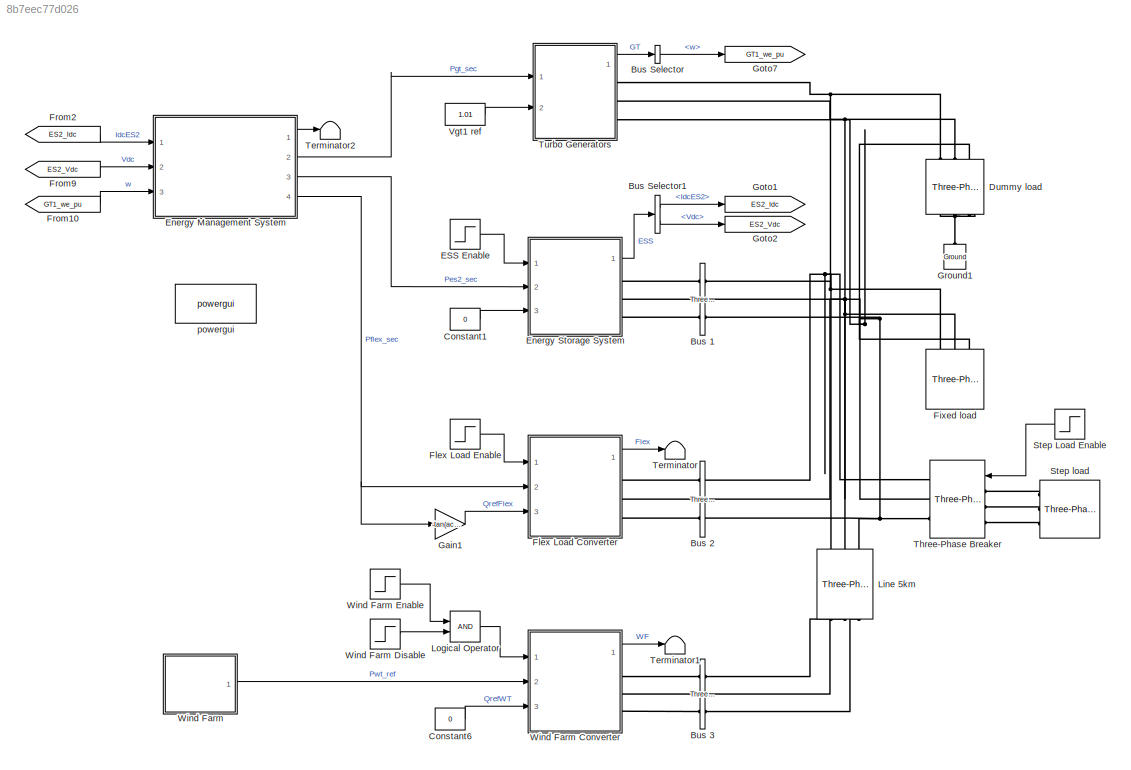
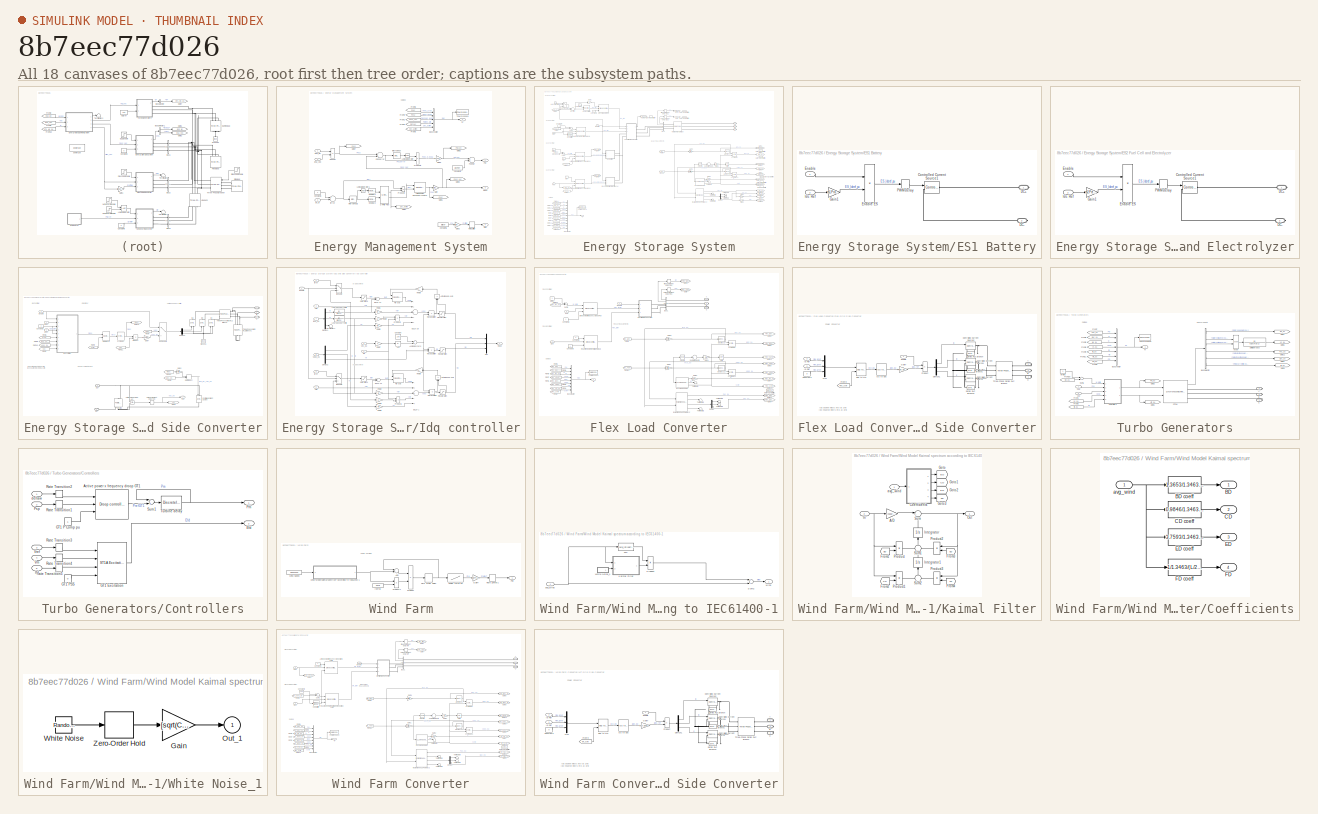
[diagram: thumbnail index - all 18 canvases of the model, root first then tree order]
MODEL slx_8b7eec77d026
KIND model
CONFIG AbsTol = auto
CONFIG EnableMultiTasking = off
CONFIG FixedStep = simu.tStep
CONFIG MaxStep = auto
CONFIG MinStep = auto
CONFIG RelTol = 1e-3
CONFIG SampleTimeConstraint = Unconstrained
CONFIG Solver = ode4
CONFIG SolverName = ode4
CONFIG StartTime = 0.0
CONFIG StopTime = simu.tTotal
BLOCK [Reference] Bus 1  REF=powerlib/Measurements/Three-Phase
V-I Measurement
  Ports = [0, 0, 0, 0, 0, 3, 3]
  SourceBlock = powerlib/Measurements/Three-Phase\nV-I Measurement
  SourceProductBaseCode = PS
  SourceProductName = Simscape Electrical
  SourceType = Three-Phase VI Measurement
BLOCK [Reference] Bus 2  REF=powerlib/Measurements/Three-Phase
V-I Measurement
  Ports = [0, 0, 0, 0, 0, 3, 3]
  SourceBlock = powerlib/Measurements/Three-Phase\nV-I Measurement
  SourceProductBaseCode = PS
  SourceProductName = Simscape Electrical
  SourceType = Three-Phase VI Measurement
BLOCK [Reference] Bus 3  REF=powerlib/Measurements/Three-Phase
V-I Measurement
  Ports = [0, 0, 0, 0, 0, 3, 3]
  SourceBlock = powerlib/Measurements/Three-Phase\nV-I Measurement
  SourceProductBaseCode = PS
  SourceProductName = Simscape Electrical
  SourceType = Three-Phase VI Measurement
BLOCK [BusSelector] Bus Selector
  OutputAsBus = off
  OutputSignals = w
  Ports = [1, 1]
BLOCK [BusSelector] Bus Selector1
  OutputAsBus = off
  OutputSignals = IdcES2,Vdc
  Ports = [1, 2]
BLOCK [Constant] Constant1
  Value = 0
BLOCK [Constant] Constant6
  Value = 0
BLOCK [Reference] Dummy load  REF=powerlib/Elements/Three-Phase
Parallel RLC Branch
  AttributesFormatString = \n
  Ports = [0, 0, 0, 0, 0, 3, 3]
  SourceBlock = powerlib/Elements/Three-Phase\nParallel RLC Branch
  SourceProductBaseCode = PS
  SourceProductName = Simscape Power Systems
  SourceType = Three-Phase Parallel RLC Branch
BLOCK [Step] ESS Enable
  SampleTime = 0
  Time = 4/grid.fn
BLOCK [SubSystem] Energy Management System
  Ports = [3, 4]
  RequestExecContextInheritance = off
BLOCK [Reference] Energy Management System/Active power Secondary control  REF=pwrsys/Controllers/PI controller 
with Hold
  Ports = [2, 1]
  SourceBlock = pwrsys/Controllers/PI controller \nwith Hold
  SourceProductName = NTNU Power Systems
  SourceType = PI controller with anti-windup
BLOCK [BusCreator] Energy Management System/Bus Creator
  DisplayOption = bar
  InheritFromInputs = on
  Inputs = 5
  Ports = [5, 1]
BLOCK [Constant] Energy Management System/Constant1
BLOCK [Constant] Energy Management System/Constant2
  Value = gt1.P.Ref
BLOCK [Constant] Energy Management System/Constant5
  Value = ld.flex.P
BLOCK [Product] Energy Management System/ES2 Pdc
  InputSameDT = off
  OutDataTypeStr = Inherit: Inherit via internal rule
  Ports = [2, 1]
  RndMeth = Floor
  SaturateOnIntegerOverflow = off
BLOCK [Inport] Energy Management System/ES2_Idc
  IconDisplay = Port number
BLOCK [Inport] Energy Management System/ES2_Vdc
  IconDisplay = Port number
  Port = 2
BLOCK [From] Energy Management System/From1
  GotoTag = Pes2_sec
BLOCK [From] Energy Management System/From2
  GotoTag = Pgt_sec
BLOCK [From] Energy Management System/From3
  GotoTag = Sec_active
BLOCK [From] Energy Management System/From8
  GotoTag = Psec
BLOCK [From] Energy Management System/From9
  GotoTag = Pes2
BLOCK [Inport] Energy Management System/GT_w
  IconDisplay = Port number
  Port = 3
BLOCK [Gain] Energy Management System/Gain
  Gain = -grid.Sb/es2.Pely
  OutDataTypeStr = Inherit: Inherit via internal rule
  ParamDataTypeStr = Inherit: Inherit via internal rule
  SaturateOnIntegerOverflow = off
BLOCK [Gain] Energy Management System/Gain2
  Gain = 1/flex.Sbase
  OutDataTypeStr = Inherit: Inherit via internal rule
  ParamDataTypeStr = Inherit: Inherit via internal rule
  SaturateOnIntegerOverflow = off
BLOCK [Gain] Energy Management System/Gain5
  Gain = -es2.Pely/gt1.SM.Sn
  OutDataTypeStr = Inherit: Inherit via internal rule
  ParamDataTypeStr = Inherit: Inherit via internal rule
  SaturateOnIntegerOverflow = off
BLOCK [Goto] Energy Management System/Goto1
  GotoTag = Psec
BLOCK [Goto] Energy Management System/Goto2
  GotoTag = Pgt_sec
BLOCK [Goto] Energy Management System/Goto3
  GotoTag = Pes2_sec
BLOCK [Goto] Energy Management System/Goto4
  GotoTag = Sec_active
BLOCK [Goto] Energy Management System/Goto7
  GotoTag = Pes2
BLOCK [Reference] Energy Management System/Interval Test  REF=simulink/Logic and Bit
Operations/Interval Test
  Ports = [1, 1]
  SourceBlock = simulink/Logic and Bit\nOperations/Interval Test
  SourceProductBaseCode = SL
  SourceProductName = Simulink
  SourceType = Interval Test
BLOCK [Reference] Energy Management System/Interval Test2  REF=simulink/Logic and Bit
Operations/Interval Test
  Ports = [1, 1]
  SourceBlock = simulink/Logic and Bit\nOperations/Interval Test
  SourceProductBaseCode = SL
  SourceProductName = Simulink
  SourceType = Interval Test
BLOCK [Logic] Energy Management System/Logical Operator
  AllPortsSameDT = off
  Operator = NOT
  OutDataTypeStr = boolean
  Ports = [1, 1]
BLOCK [Logic] Energy Management System/Logical Operator1
  AllPortsSameDT = off
  Operator = NOT
  OutDataTypeStr = boolean
  Ports = [1, 1]
BLOCK [Reference] Energy Management System/On Delay1  REF=powerlib_meascontrol/Logic/On Delay
  Ports = [1, 1]
  SourceBlock = powerlib_meascontrol/Logic/On Delay
  SourceProductBaseCode = PS
  SourceProductName = Simscape Power Systems
  SourceType = On/Off Delay
BLOCK [Reference] Energy Management System/On Delay2  REF=powerlib_meascontrol/Logic/On Delay
  Ports = [1, 1]
  SourceBlock = powerlib_meascontrol/Logic/On Delay
  SourceProductBaseCode = PS
  SourceProductName = Simscape Power Systems
  SourceType = On/Off Delay
BLOCK [Sum] Energy Management System/P ES2 error
  InputSameDT = off
  Inputs = -+
  OutDataTypeStr = Inherit: Inherit via internal rule
  Ports = [2, 1]
  SaturateOnIntegerOverflow = off
BLOCK [Sum] Energy Management System/P GT Ref
  InputSameDT = off
  OutDataTypeStr = Inherit: Inherit via internal rule
  Ports = [2, 1]
  SaturateOnIntegerOverflow = off
BLOCK [Outport] Energy Management System/Pes2
  IconDisplay = Port number
  Port = 3
BLOCK [Outport] Energy Management System/Pflex
  IconDisplay = Port number
  Port = 4
BLOCK [Outport] Energy Management System/Pgt
  IconDisplay = Port number
  Port = 2
BLOCK [Product] Energy Management System/Product2
  InputSameDT = off
  OutDataTypeStr = Inherit: Inherit via internal rule
  Ports = [2, 1]
  RndMeth = Floor
  SaturateOnIntegerOverflow = off
BLOCK [Product] Energy Management System/Product3
  InputSameDT = off
  OutDataTypeStr = Inherit: Inherit via internal rule
  Ports = [2, 1]
  RndMeth = Floor
  SaturateOnIntegerOverflow = off
BLOCK [RateLimiter] Energy Management System/Rate Limiter
  FallingSlewLimit = -100
  RisingSlewLimit = 100
  SampleTimeMode = inherited
BLOCK [Reference] Energy Management System/S-R Flip-Flop  REF=simulink_extras/Flip Flops/S-R
Flip-Flop
  Ports = [2, 2]
  SourceBlock = simulink_extras/Flip Flops/S-R\nFlip-Flop
  SourceProductBaseCode = SL
  SourceProductName = Simulink
  SourceType = SRFlipFlop
BLOCK [ToWorkspace] Energy Management System/To Workspace
  Decimation = 2000
  FixptAsFi = on
  MaxDataPoints = inf
  Ports = [1]
  SampleTime = -1
  Save2DSignal = 3-D array (concatenate along third dimension)
  SaveFormat = Timeseries
  VariableName = SecLog
BLOCK [Sum] Energy Management System/f error
  InputSameDT = off
  Inputs = +-
  OutDataTypeStr = Inherit: Inherit via internal rule
  Ports = [2, 1]
  SaturateOnIntegerOverflow = off
BLOCK [Outport] Energy Management System/m
  IconDisplay = Port number
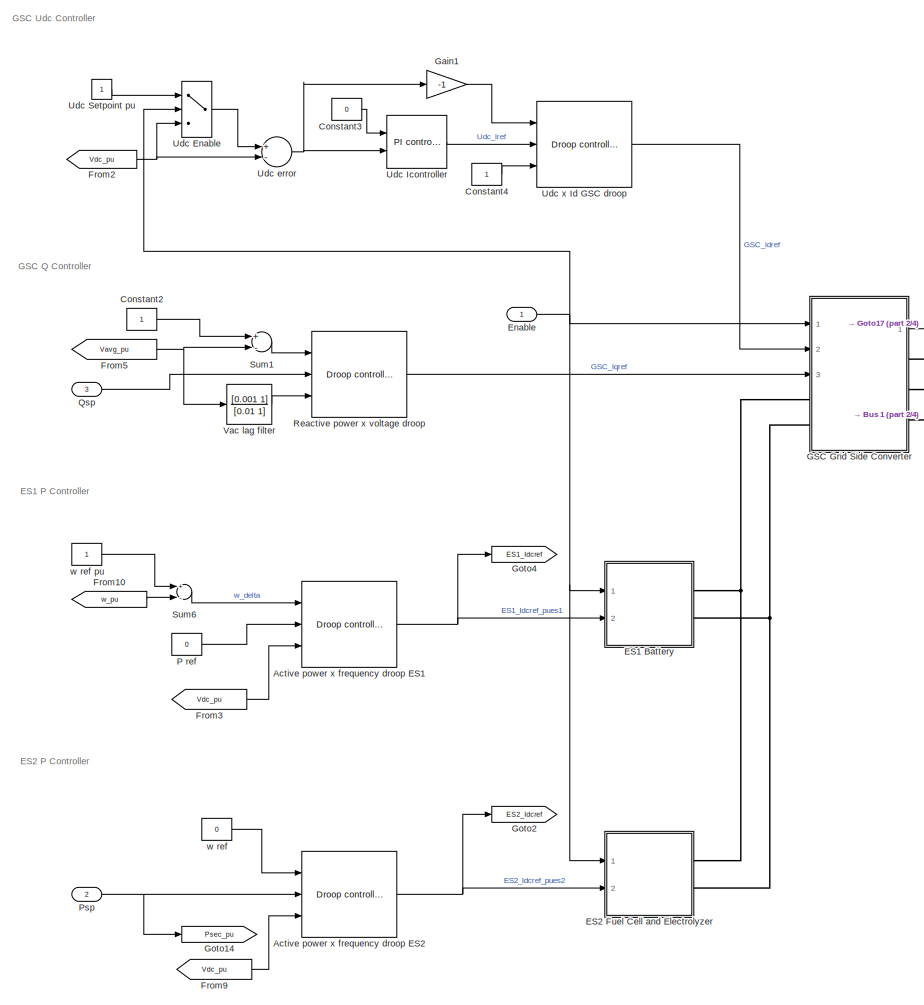
[diagram: Energy Storage System - part 1/4, middle left region]
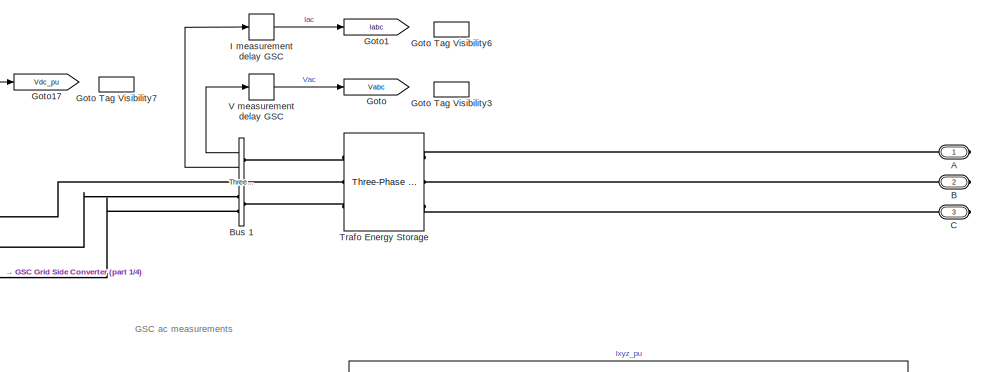
[diagram: Energy Storage System - part 2/4, top center region]
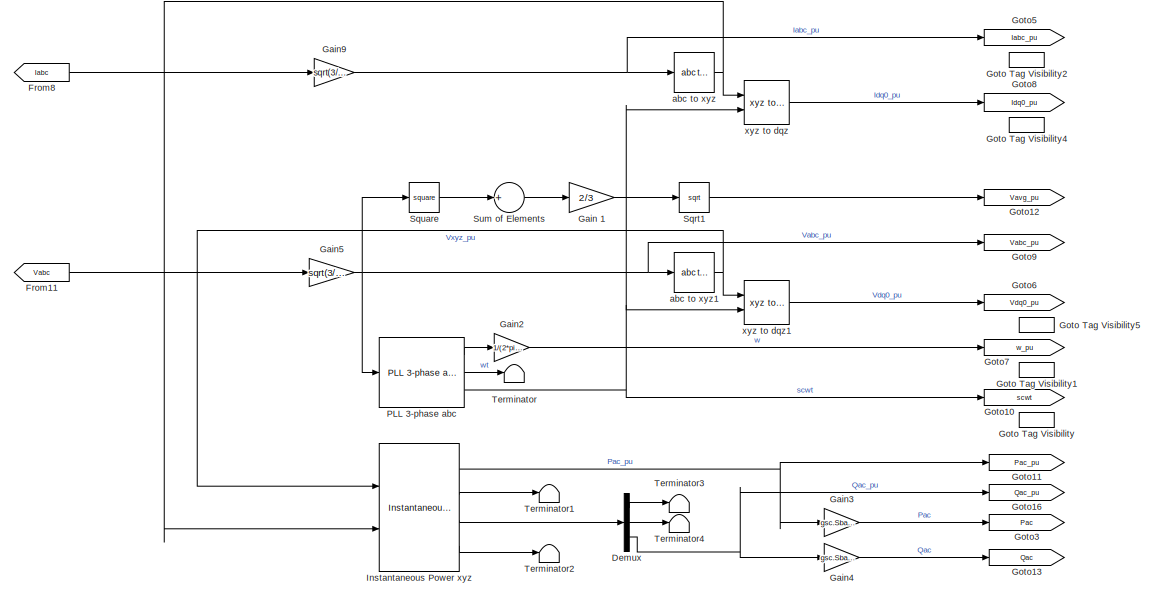
[diagram: Energy Storage System - part 3/4, middle right region]
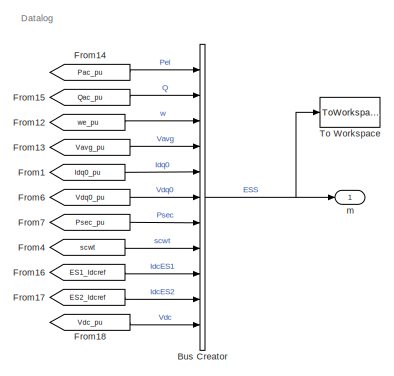
[diagram: Energy Storage System - part 4/4, bottom left region]
BLOCK [SubSystem] Energy Storage System
  Ports = [3, 1, 0, 0, 0, 0, 3]
  RequestExecContextInheritance = off
BLOCK [PMIOPort] Energy Storage System/A
  Side = Right
BLOCK [Reference] Energy Storage System/Active power x frequency droop ES1  REF=pwrsys/Controllers/Droop controller
  Ports = [3, 1]
  SourceBlock = pwrsys/Controllers/Droop controller
  SourceProductName = NTNU Power Systems
  SourceType = Droop controller
BLOCK [Reference] Energy Storage System/Active power x frequency droop ES2  REF=pwrsys/Controllers/Droop controller
  Ports = [3, 1]
  SourceBlock = pwrsys/Controllers/Droop controller
  SourceProductName = NTNU Power Systems
  SourceType = Droop controller
BLOCK [PMIOPort] Energy Storage System/B
  Port = 2
  Side = Right
BLOCK [Reference] Energy Storage System/Bus 1  REF=powerlib/Measurements/Three-Phase
V-I Measurement
  Ports = [0, 2, 0, 0, 0, 3, 3]
  SourceBlock = powerlib/Measurements/Three-Phase\nV-I Measurement
  SourceProductBaseCode = PS
  SourceProductName = Simscape Power Systems
  SourceType = Three-Phase VI Measurement
BLOCK [BusCreator] Energy Storage System/Bus Creator
  DisplayOption = bar
  InheritFromInputs = on
  Inputs = 11
  Ports = [11, 1]
BLOCK [PMIOPort] Energy Storage System/C
  Port = 3
  Side = Right
BLOCK [Constant] Energy Storage System/Constant2
BLOCK [Constant] Energy Storage System/Constant3
  Value = 0
BLOCK [Constant] Energy Storage System/Constant4
BLOCK [Demux] Energy Storage System/Demux
  DisplayOption = bar
  Outputs = 3
  Ports = [1, 3]
BLOCK [SubSystem] Energy Storage System/ES1 Battery
  Ports = [2, 0, 0, 0, 0, 0, 2]
  RequestExecContextInheritance = off
BLOCK [Reference] Energy Storage System/ES1 Battery/Controlled Current Source1  REF=powerlib/Electrical
Sources/Controlled Current Source
  Ports = [1, 0, 0, 0, 0, 1, 1]
  SourceBlock = powerlib/Electrical\nSources/Controlled Current Source
  SourceProductBaseCode = PS
  SourceProductName = Simscape Power Systems
  SourceType = Controlled Current Source
BLOCK [PMIOPort] Energy Storage System/ES1 Battery/DC+
  Side = Right
BLOCK [PMIOPort] Energy Storage System/ES1 Battery/DC-
  Port = 2
  Side = Right
BLOCK [Inport] Energy Storage System/ES1 Battery/Enable
  IconDisplay = Port number
BLOCK [Product] Energy Storage System/ES1 Battery/Enable ES
  InputSameDT = off
  Inputs = **
  OutDataTypeStr = Inherit: Inherit via internal rule
  Ports = [2, 1]
  RndMeth = Floor
  SaturateOnIntegerOverflow = off
BLOCK [Gain] Energy Storage System/ES1 Battery/Gain1
  Gain = es1.Prated/gsc.Sbase
  OutDataTypeStr = Inherit: Inherit via internal rule
  ParamDataTypeStr = Inherit: Inherit via internal rule
  SaturateOnIntegerOverflow = off
BLOCK [Inport] Energy Storage System/ES1 Battery/Idc Ref
  IconDisplay = Port number
  Port = 2
BLOCK [TransportDelay] Energy Storage System/ES1 Battery/PWM delay
  DelayTime = simu.tStep
  Ports = [1, 1]
BLOCK [SubSystem] Energy Storage System/ES2 Fuel Cell and Electrolyzer
  Ports = [2, 0, 0, 0, 0, 0, 2]
  RequestExecContextInheritance = off
BLOCK [Reference] Energy Storage System/ES2 Fuel Cell and Electrolyzer/Controlled Current Source1  REF=powerlib/Electrical
Sources/Controlled Current Source
  Ports = [1, 0, 0, 0, 0, 1, 1]
  SourceBlock = powerlib/Electrical\nSources/Controlled Current Source
  SourceProductBaseCode = PS
  SourceProductName = Simscape Power Systems
  SourceType = Controlled Current Source
BLOCK [PMIOPort] Energy Storage System/ES2 Fuel Cell and Electrolyzer/DC+
  Side = Right
BLOCK [PMIOPort] Energy Storage System/ES2 Fuel Cell and Electrolyzer/DC-
  Port = 2
  Side = Right
BLOCK [Inport] Energy Storage System/ES2 Fuel Cell and Electrolyzer/Enable
  IconDisplay = Port number
BLOCK [Product] Energy Storage System/ES2 Fuel Cell and Electrolyzer/Enable ES
  InputSameDT = off
  Inputs = **
  OutDataTypeStr = Inherit: Inherit via internal rule
  Ports = [2, 1]
  RndMeth = Floor
  SaturateOnIntegerOverflow = off
BLOCK [Gain] Energy Storage System/ES2 Fuel Cell and Electrolyzer/Gain1
  Gain = es2.Pely/gsc.Sbase
  OutDataTypeStr = Inherit: Inherit via internal rule
  ParamDataTypeStr = Inherit: Inherit via internal rule
  SaturateOnIntegerOverflow = off
BLOCK [Inport] Energy Storage System/ES2 Fuel Cell and Electrolyzer/Idc Ref
  IconDisplay = Port number
  Port = 2
BLOCK [TransportDelay] Energy Storage System/ES2 Fuel Cell and Electrolyzer/PWM delay
  DelayTime = simu.tStep
  Ports = [1, 1]
BLOCK [Inport] Energy Storage System/Enable
  IconDisplay = Port number
BLOCK [From] Energy Storage System/From1
  GotoTag = Idq0_pu
  TagVisibility = scoped
BLOCK [From] Energy Storage System/From10
  GotoTag = w_pu
  TagVisibility = scoped
BLOCK [From] Energy Storage System/From11
  GotoTag = Vabc
  TagVisibility = scoped
BLOCK [From] Energy Storage System/From12
  GotoTag = we_pu
BLOCK [From] Energy Storage System/From13
  GotoTag = Vavg_pu
BLOCK [From] Energy Storage System/From14
  GotoTag = Pac_pu
BLOCK [From] Energy Storage System/From15
  GotoTag = Qac_pu
BLOCK [From] Energy Storage System/From16
  GotoTag = ES1_Idcref
BLOCK [From] Energy Storage System/From17
  GotoTag = ES2_Idcref
BLOCK [From] Energy Storage System/From18
  GotoTag = Vdc_pu
BLOCK [From] Energy Storage System/From2
  GotoTag = Vdc_pu
BLOCK [From] Energy Storage System/From3
  GotoTag = Vdc_pu
BLOCK [From] Energy Storage System/From4
  GotoTag = scwt
  TagVisibility = scoped
BLOCK [From] Energy Storage System/From5
  GotoTag = Vavg_pu
BLOCK [From] Energy Storage System/From6
  GotoTag = Vdq0_pu
  TagVisibility = scoped
BLOCK [From] Energy Storage System/From7
  GotoTag = Psec_pu
BLOCK [From] Energy Storage System/From8
  GotoTag = Iabc
  TagVisibility = scoped
BLOCK [From] Energy Storage System/From9
  GotoTag = Vdc_pu
BLOCK [SubSystem] Energy Storage System/GSC Grid Side Converter
  Ports = [3, 1, 0, 0, 0, 2, 3]
  RequestExecContextInheritance = off
BLOCK [PMIOPort] Energy Storage System/GSC Grid Side Converter/A
  Side = Right
BLOCK [PMIOPort] Energy Storage System/GSC Grid Side Converter/B
  Port = 2
  Side = Right
BLOCK [PMIOPort] Energy Storage System/GSC Grid Side Converter/C
  Port = 3
  Side = Right
BLOCK [Reference] Energy Storage System/GSC Grid Side Converter/Cdclink  REF=powerlib/Elements/Parallel RLC Branch
  AttributesFormatString = \n
  Ports = [0, 0, 0, 0, 0, 1, 1]
  SourceBlock = powerlib/Elements/Parallel RLC Branch
  SourceProductBaseCode = PS
  SourceProductName = Simscape Power Systems
  SourceType = Parallel RLC Branch
BLOCK [Constant] Energy Storage System/GSC Grid Side Converter/Constant2
  Value = 0
BLOCK [Reference] Energy Storage System/GSC Grid Side Converter/Controlled Current Source  REF=powerlib/Electrical
Sources/Controlled Current Source
  Ports = [1, 0, 0, 0, 0, 1, 1]
  SourceBlock = powerlib/Electrical\nSources/Controlled Current Source
  SourceProductBaseCode = PS
  SourceProductName = Simscape Power Systems
  SourceType = Controlled Current Source
BLOCK [PMIOPort] Energy Storage System/GSC Grid Side Converter/DC+
  Port = 4
  Side = Left
BLOCK [PMIOPort] Energy Storage System/GSC Grid Side Converter/DC-
  Port = 5
  Side = Left
BLOCK [Demux] Energy Storage System/GSC Grid Side Converter/Demux2
  DisplayOption = bar
  Outputs = 3
  Ports = [1, 3]
BLOCK [DotProduct] Energy Storage System/GSC Grid Side Converter/Dot Product
  OutDataTypeStr = Inherit: Inherit via internal rule
BLOCK [Reference] Energy Storage System/GSC Grid Side Converter/Ea  REF=powerlib/Electrical
Sources/Controlled Voltage Source
  Ports = [1, 0, 0, 0, 0, 1, 1]
  SourceBlock = powerlib/Electrical\nSources/Controlled Voltage Source
  SourceProductBaseCode = PS
  SourceProductName = Simscape Power Systems
  SourceType = Controlled Voltage Source
BLOCK [Reference] Energy Storage System/GSC Grid Side Converter/Eb  REF=powerlib/Electrical
Sources/Controlled Voltage Source
  Ports = [1, 0, 0, 0, 0, 1, 1]
  SourceBlock = powerlib/Electrical\nSources/Controlled Voltage Source
  SourceProductBaseCode = PS
  SourceProductName = Simscape Power Systems
  SourceType = Controlled Voltage Source
BLOCK [Reference] Energy Storage System/GSC Grid Side Converter/Ec  REF=powerlib/Electrical
Sources/Controlled Voltage Source
  Ports = [1, 0, 0, 0, 0, 1, 1]
  SourceBlock = powerlib/Electrical\nSources/Controlled Voltage Source
  SourceProductBaseCode = PS
  SourceProductName = Simscape Power Systems
  SourceType = Controlled Voltage Source
BLOCK [Inport] Energy Storage System/GSC Grid Side Converter/Enable
  IconDisplay = Port number
BLOCK [From] Energy Storage System/GSC Grid Side Converter/From1
  GotoTag = Iabc_pu
  TagVisibility = scoped
BLOCK [From] Energy Storage System/GSC Grid Side Converter/From10
  GotoTag = mabc
BLOCK [From] Energy Storage System/GSC Grid Side Converter/From11
  GotoTag = Vdc
BLOCK [From] Energy Storage System/GSC Grid Side Converter/From16
  GotoTag = Vdq0_pu
  TagVisibility = scoped
BLOCK [From] Energy Storage System/GSC Grid Side Converter/From3
  GotoTag = Vdc
BLOCK [From] Energy Storage System/GSC Grid Side Converter/From6
  GotoTag = w_pu
  TagVisibility = scoped
BLOCK [From] Energy Storage System/GSC Grid Side Converter/From7
  GotoTag = Vabc
  TagVisibility = scoped
BLOCK [From] Energy Storage System/GSC Grid Side Converter/From8
  GotoTag = Idq0_pu
  TagVisibility = scoped
BLOCK [From] Energy Storage System/GSC Grid Side Converter/From9
  GotoTag = scwt
  TagVisibility = scoped
BLOCK [MultiPortSwitch] Energy Storage System/GSC Grid Side Converter/GSC Enable
  DataPortOrder = Zero-based contiguous
  InputSameDT = off
  Inputs = 2
  Ports = [3, 1]
  SaturateOnIntegerOverflow = off
  zeroidx = on
BLOCK [Gain] Energy Storage System/GSC Grid Side Converter/Gain2
  Gain = sqrt(3)
  OutDataTypeStr = Inherit: Inherit via internal rule
  ParamDataTypeStr = Inherit: Inherit via internal rule
  SaturateOnIntegerOverflow = off
BLOCK [Gain] Energy Storage System/GSC Grid Side Converter/Gain7
  Gain = gsc.Vdcbase
  OutDataTypeStr = Inherit: Inherit via internal rule
  ParamDataTypeStr = Inherit: Inherit via internal rule
  SaturateOnIntegerOverflow = off
BLOCK [Goto] Energy Storage System/GSC Grid Side Converter/Goto10
  GotoTag = mabc
BLOCK [Goto] Energy Storage System/GSC Grid Side Converter/Goto2
  GotoTag = Vdc
BLOCK [Reference] Energy Storage System/GSC Grid Side Converter/Ground1  REF=powerlib/Elements/Ground
  Ports = [0, 0, 0, 0, 0, 1]
  SourceBlock = powerlib/Elements/Ground
  SourceProductBaseCode = PS
  SourceProductName = Simscape Power Systems
  SourceType = Ground
BLOCK [Inport] Energy Storage System/GSC Grid Side Converter/Id Ref
  IconDisplay = Port number
  Port = 2
BLOCK [SubSystem] Energy Storage System/GSC Grid Side Converter/Idq controller
  Ports = [9, 1]
  RequestExecContextInheritance = off
BLOCK [Abs] Energy Storage System/GSC Grid Side Converter/Idq controller/Abs
  SaturateOnIntegerOverflow = off
  ZeroCross = off
BLOCK [RelationalOperator] Energy Storage System/GSC Grid Side Converter/Idq controller/Anti-windup d-axis
  InputSameDT = off
  Operator = ~=
  OutDataTypeStr = boolean
  Ports = [2, 1]
  RndMeth = Simplest
BLOCK [RelationalOperator] Energy Storage System/GSC Grid Side Converter/Idq controller/Anti-windup q-axis
  InputSameDT = off
  Operator = ~=
  OutDataTypeStr = boolean
  Ports = [2, 1]
  RndMeth = Simplest
BLOCK [Sum] Energy Storage System/GSC Grid Side Converter/Idq controller/Avoid div by zero
  InputSameDT = off
  OutDataTypeStr = Inherit: Inherit via internal rule
  Ports = [2, 1]
  SaturateOnIntegerOverflow = off
BLOCK [Constant] Energy Storage System/GSC Grid Side Converter/Idq controller/Constant
  Value = 1e-5
BLOCK [Demux] Energy Storage System/GSC Grid Side Converter/Idq controller/Demux1
  DisplayOption = bar
  Outputs = 3
  Ports = [1, 3]
BLOCK [Demux] Energy Storage System/GSC Grid Side Converter/Idq controller/Demux2
  DisplayOption = bar
  Outputs = 3
  Ports = [1, 3]
BLOCK [Inport] Energy Storage System/GSC Grid Side Converter/Idq controller/Enable
  IconDisplay = Port number
BLOCK [Sum] Energy Storage System/GSC Grid Side Converter/Idq controller/Eq. 10-1
  Inputs = -++-+
  Ports = [5, 1]
BLOCK [Sum] Energy Storage System/GSC Grid Side Converter/Idq controller/Eq. 10-28
  Inputs = -++++
  Ports = [5, 1]
BLOCK [Sum] Energy Storage System/GSC Grid Side Converter/Idq controller/Eq. 10-X1
  Inputs = +-
  Ports = [2, 1]
BLOCK [Sum] Energy Storage System/GSC Grid Side Converter/Idq controller/Eq. 10-X2
  Inputs = +-
  Ports = [2, 1]
BLOCK [Switch] Energy Storage System/GSC Grid Side Converter/Idq controller/Id Enable
  Criteria = u2 ~= 0
  InputSameDT = off
  SaturateOnIntegerOverflow = off
BLOCK [Inport] Energy Storage System/GSC Grid Side Converter/Idq controller/Idq0_pu
  IconDisplay = Port number
  Port = 7
BLOCK [Inport] Energy Storage System/GSC Grid Side Converter/Idq controller/Idref
  IconDisplay = Port number
  Port = 2
BLOCK [Switch] Energy Storage System/GSC Grid Side Converter/Idq controller/Iq Enable
  Criteria = u2 ~= 0
  InputSameDT = off
  SaturateOnIntegerOverflow = off
BLOCK [Inport] Energy Storage System/GSC Grid Side Converter/Idq controller/Iqref
  IconDisplay = Port number
  Port = 4
BLOCK [TransferFcn] Energy Storage System/GSC Grid Side Converter/Idq controller/Low-pass Current Id
  Denominator = [2/fLC 1]
BLOCK [TransferFcn] Energy Storage System/GSC Grid Side Converter/Idq controller/Low-pass Current Iq
  Denominator = [2/fLC 1]
BLOCK [Mux] Energy Storage System/GSC Grid Side Converter/Idq controller/Mux
  DisplayOption = bar
  Inputs = 3
  Ports = [3, 1]
BLOCK [Reference] Energy Storage System/GSC Grid Side Converter/Idq controller/PI d-axis  REF=pwrsys/Controllers/PI controller 
with Hold
  Ports = [2, 1]
  SourceBlock = pwrsys/Controllers/PI controller \nwith Hold
  SourceProductName = NTNU Power Systems
  SourceType = PI controller with anti-windup
BLOCK [Reference] Energy Storage System/GSC Grid Side Converter/Idq controller/PI q-axis  REF=pwrsys/Controllers/PI controller 
with Hold
  Ports = [2, 1]
  SourceBlock = pwrsys/Controllers/PI controller \nwith Hold
  SourceProductName = NTNU Power Systems
  SourceType = PI controller with anti-windup
BLOCK [Product] Energy Storage System/GSC Grid Side Converter/Idq controller/Product1
  Ports = [2, 1]
BLOCK [Product] Energy Storage System/GSC Grid Side Converter/Idq controller/Product3
  Ports = [2, 1]
BLOCK [Gain] Energy Storage System/GSC Grid Side Converter/Idq controller/Rmat1
  Gain = Rf
  OutDataTypeStr = Inherit: Inherit via internal rule
  ParamDataTypeStr = Inherit: Inherit via internal rule
  SaturateOnIntegerOverflow = off
BLOCK [Gain] Energy Storage System/GSC Grid Side Converter/Idq controller/Rmat2
  Gain = Rf
  OutDataTypeStr = Inherit: Inherit via internal rule
  ParamDataTypeStr = Inherit: Inherit via internal rule
  SaturateOnIntegerOverflow = off
BLOCK [Gain] Energy Storage System/GSC Grid Side Converter/Idq controller/Rmat3
  Gain = Lf
  OutDataTypeStr = Inherit: Inherit via internal rule
  ParamDataTypeStr = Inherit: Inherit via internal rule
  SaturateOnIntegerOverflow = off
BLOCK [Gain] Energy Storage System/GSC Grid Side Converter/Idq controller/Rmat4
  Gain = Lf
  OutDataTypeStr = Inherit: Inherit via internal rule
  ParamDataTypeStr = Inherit: Inherit via internal rule
  SaturateOnIntegerOverflow = off
BLOCK [Gain] Energy Storage System/GSC Grid Side Converter/Idq controller/Rmat5
  Gain = Kff
  OutDataTypeStr = Inherit: Inherit via internal rule
  ParamDataTypeStr = Inherit: Inherit via internal rule
  SaturateOnIntegerOverflow = off
BLOCK [Gain] Energy Storage System/GSC Grid Side Converter/Idq controller/Rmat6
  Gain = Kff
  OutDataTypeStr = Inherit: Inherit via internal rule
  ParamDataTypeStr = Inherit: Inherit via internal rule
  SaturateOnIntegerOverflow = off
BLOCK [Gain] Energy Storage System/GSC Grid Side Converter/Idq controller/Rmat7
  Gain = K
  OutDataTypeStr = Inherit: Inherit via internal rule
  ParamDataTypeStr = Inherit: Inherit via internal rule
  SaturateOnIntegerOverflow = off
BLOCK [Gain] Energy Storage System/GSC Grid Side Converter/Idq controller/Rmat8
  OutDataTypeStr = Inherit: Inherit via internal rule
  ParamDataTypeStr = Inherit: Inherit via internal rule
  SaturateOnIntegerOverflow = off
BLOCK [Gain] Energy Storage System/GSC Grid Side Converter/Idq controller/Rmat9
  OutDataTypeStr = Inherit: Inherit via internal rule
  ParamDataTypeStr = Inherit: Inherit via internal rule
  SaturateOnIntegerOverflow = off
BLOCK [Saturate] Energy Storage System/GSC Grid Side Converter/Idq controller/Saturation4
  InputPortMap = u0
  LowerLimit = -Imax
  Ports = [1, 1]
  UpperLimit = Imax
BLOCK [Saturate] Energy Storage System/GSC Grid Side Converter/Idq controller/Saturation5
  InputPortMap = u0
  LowerLimit = -Imax
  Ports = [1, 1]
  UpperLimit = Imax
BLOCK [Terminator] Energy Storage System/GSC Grid Side Converter/Idq controller/Terminator1
BLOCK [Inport] Energy Storage System/GSC Grid Side Converter/Idq controller/Vdc_pu
  IconDisplay = Port number
  Port = 9
BLOCK [Inport] Energy Storage System/GSC Grid Side Converter/Idq controller/Vdff
  IconDisplay = Port number
  Port = 3
BLOCK [Inport] Energy Storage System/GSC Grid Side Converter/Idq controller/Vdq0_pu
  IconDisplay = Port number
  Port = 8
BLOCK [Inport] Energy Storage System/GSC Grid Side Converter/Idq controller/Vqff
  IconDisplay = Port number
  Port = 5
BLOCK [Product] Energy Storage System/GSC Grid Side Converter/Idq controller/m0 calculation
  InputSameDT = off
  Inputs = /*
  OutDataTypeStr = Inherit: Inherit via internal rule
  Ports = [2, 1]
  RndMeth = Floor
  SaturateOnIntegerOverflow = off
BLOCK [Saturate] Energy Storage System/GSC Grid Side Converter/Idq controller/m0 saturation
  InputPortMap = u0
  LowerLimit = -mmax
  Ports = [1, 1]
  UpperLimit = mmax
BLOCK [Product] Energy Storage System/GSC Grid Side Converter/Idq controller/md calculation
  InputSameDT = off
  Inputs = */
  OutDataTypeStr = Inherit: Inherit via internal rule
  Ports = [2, 1]
  RndMeth = Floor
  SaturateOnIntegerOverflow = off
BLOCK [Saturate] Energy Storage System/GSC Grid Side Converter/Idq controller/md saturation
  InputPortMap = u0
  LowerLimit = -mmax
  Ports = [1, 1]
  UpperLimit = mmax
BLOCK [Outport] Energy Storage System/GSC Grid Side Converter/Idq controller/mdq0
  IconDisplay = Port number
BLOCK [Product] Energy Storage System/GSC Grid Side Converter/Idq controller/mq calculation
  InputSameDT = off
  Inputs = /*
  OutDataTypeStr = Inherit: Inherit via internal rule
  Ports = [2, 1]
  RndMeth = Floor
  SaturateOnIntegerOverflow = off
BLOCK [Saturate] Energy Storage System/GSC Grid Side Converter/Idq controller/mq saturation
  InputPortMap = u0
  LowerLimit = -mmax
  Ports = [1, 1]
  UpperLimit = mmax
BLOCK [Inport] Energy Storage System/GSC Grid Side Converter/Idq controller/we
  IconDisplay = Port number
  Port = 6
BLOCK [Inport] Energy Storage System/GSC Grid Side Converter/Iq Ref
  IconDisplay = Port number
  Port = 3
BLOCK [Product] Energy Storage System/GSC Grid Side Converter/Product
  InputSameDT = off
  OutDataTypeStr = Inherit: Inherit via internal rule
  Ports = [2, 1]
  RndMeth = Floor
  SaturateOnIntegerOverflow = off
BLOCK [Reference] Energy Storage System/GSC Grid Side Converter/Three-Phase Series RLC Branch  REF=powerlib/Elements/Three-Phase
Series RLC Branch
  AttributesFormatString = \n
  Ports = [0, 0, 0, 0, 0, 3, 3]
  SourceBlock = powerlib/Elements/Three-Phase\nSeries RLC Branch
  SourceProductBaseCode = PS
  SourceProductName = Simscape Power Systems
  SourceType = Three-Phase Series RLC Branch
BLOCK [Reference] Energy Storage System/GSC Grid Side Converter/Three-Phase Series RLC Branch1  REF=powerlib/Elements/Three-Phase
Series RLC Branch
  AttributesFormatString = \n
  Ports = [0, 0, 0, 0, 0, 3, 3]
  SourceBlock = powerlib/Elements/Three-Phase\nSeries RLC Branch
  SourceProductBaseCode = PS
  SourceProductName = Simscape Power Systems
  SourceType = Three-Phase Series RLC Branch
BLOCK [TransportDelay] Energy Storage System/GSC Grid Side Converter/V measurement delay Vdc
  DelayTime = 1/gsc.fSwitch
  Ports = [1, 1]
BLOCK [Outport] Energy Storage System/GSC Grid Side Converter/Vdc
  IconDisplay = Port number
BLOCK [Reference] Energy Storage System/GSC Grid Side Converter/Voltage Measurement  REF=powerlib/Measurements/Voltage Measurement
  Ports = [0, 1, 0, 0, 0, 2]
  SourceBlock = powerlib/Measurements/Voltage Measurement
  SourceProductBaseCode = PS
  SourceProductName = Simscape Power Systems
  SourceType = Voltage Measurement
  UserDataPersistent = on
BLOCK [Reference] Energy Storage System/GSC Grid Side Converter/dqz to xyz  REF=pwrsys/Transformations/dqz to xyz
  Ports = [2, 1]
  SourceBlock = pwrsys/Transformations/dqz to xyz
  SourceProductName = NTNU Power Systems
  SourceType = Inverse Park transformation
BLOCK [Reference] Energy Storage System/GSC Grid Side Converter/xyz to abc  REF=pwrsys/Transformations/xyz to abc
  Ports = [1, 1]
  SourceBlock = pwrsys/Transformations/xyz to abc
  SourceProductName = NTNU Power Systems
  SourceType = Inverse Clarke transformation
BLOCK [Gain] Energy Storage System/Gain 1 
  Gain = 2/3
  OutDataTypeStr = Inherit: Inherit via internal rule
  ParamDataTypeStr = Inherit: Inherit via internal rule
  SaturateOnIntegerOverflow = off
BLOCK [Gain] Energy Storage System/Gain1
  Gain = -1
  OutDataTypeStr = Inherit: Inherit via internal rule
  ParamDataTypeStr = Inherit: Inherit via internal rule
  SaturateOnIntegerOverflow = off
BLOCK [Gain] Energy Storage System/Gain2
  Gain = 1/(2*pi*gsc.fbase)
  OutDataTypeStr = Inherit: Inherit via internal rule
  ParamDataTypeStr = Inherit: Inherit via internal rule
  SaturateOnIntegerOverflow = off
BLOCK [Gain] Energy Storage System/Gain3
  Gain = gsc.Sbase
  OutDataTypeStr = Inherit: Inherit via internal rule
  ParamDataTypeStr = Inherit: Inherit via internal rule
  SaturateOnIntegerOverflow = off
BLOCK [Gain] Energy Storage System/Gain4
  Gain = gsc.Sbase
  OutDataTypeStr = Inherit: Inherit via internal rule
  ParamDataTypeStr = Inherit: Inherit via internal rule
  SaturateOnIntegerOverflow = off
BLOCK [Gain] Energy Storage System/Gain5
  Gain = sqrt(3/2)/gsc.Vbase
  OutDataTypeStr = Inherit: Inherit via internal rule
  ParamDataTypeStr = Inherit: Inherit via internal rule
  SaturateOnIntegerOverflow = off
BLOCK [Gain] Energy Storage System/Gain9
  Gain = sqrt(3/2)*gsc.Vbase/gsc.Sbase
  OutDataTypeStr = Inherit: Inherit via internal rule
  ParamDataTypeStr = Inherit: Inherit via internal rule
  SaturateOnIntegerOverflow = off
BLOCK [Goto] Energy Storage System/Goto
  GotoTag = Vabc
  TagVisibility = scoped
BLOCK [GotoTagVisibility] Energy Storage System/Goto Tag Visibility
  GotoTag = scwt
BLOCK [GotoTagVisibility] Energy Storage System/Goto Tag Visibility1
  GotoTag = w_pu
BLOCK [GotoTagVisibility] Energy Storage System/Goto Tag Visibility2
  GotoTag = Iabc_pu
BLOCK [GotoTagVisibility] Energy Storage System/Goto Tag Visibility3
  GotoTag = Vabc
BLOCK [GotoTagVisibility] Energy Storage System/Goto Tag Visibility4
  GotoTag = Idq0_pu
BLOCK [GotoTagVisibility] Energy Storage System/Goto Tag Visibility5
  GotoTag = Vdq0_pu
BLOCK [GotoTagVisibility] Energy Storage System/Goto Tag Visibility6
  GotoTag = Iabc
BLOCK [GotoTagVisibility] Energy Storage System/Goto Tag Visibility7
  GotoTag = Vdc_pu
BLOCK [Goto] Energy Storage System/Goto1
  GotoTag = Iabc
  TagVisibility = scoped
BLOCK [Goto] Energy Storage System/Goto10
  GotoTag = scwt
  TagVisibility = scoped
BLOCK [Goto] Energy Storage System/Goto11
  GotoTag = Pac_pu
BLOCK [Goto] Energy Storage System/Goto12
  GotoTag = Vavg_pu
BLOCK [Goto] Energy Storage System/Goto13
  GotoTag = Qac
BLOCK [Goto] Energy Storage System/Goto14
  GotoTag = Psec_pu
BLOCK [Goto] Energy Storage System/Goto16
  GotoTag = Qac_pu
BLOCK [Goto] Energy Storage System/Goto17
  GotoTag = Vdc_pu
BLOCK [Goto] Energy Storage System/Goto2
  GotoTag = ES2_Idcref
BLOCK [Goto] Energy Storage System/Goto3
  GotoTag = Pac
BLOCK [Goto] Energy Storage System/Goto4
  GotoTag = ES1_Idcref
BLOCK [Goto] Energy Storage System/Goto5
  GotoTag = Iabc_pu
  TagVisibility = scoped
BLOCK [Goto] Energy Storage System/Goto6
  GotoTag = Vdq0_pu
  TagVisibility = scoped
BLOCK [Goto] Energy Storage System/Goto7
  GotoTag = w_pu
  TagVisibility = scoped
BLOCK [Goto] Energy Storage System/Goto8
  GotoTag = Idq0_pu
  TagVisibility = scoped
BLOCK [Goto] Energy Storage System/Goto9
  GotoTag = Vabc_pu
BLOCK [TransportDelay] Energy Storage System/I measurement delay GSC
  DelayTime = simu.tStep
  Ports = [1, 1]
BLOCK [Reference] Energy Storage System/Instantaneous Power xyz  REF=pwrsys/Measurement/Instantaneous Power xyz
  Ports = [2, 4]
  SourceBlock = pwrsys/Measurement/Instantaneous Power xyz
  SourceProductName = NTNU Power Systems
  SourceType = Instantaneous Power xyz
BLOCK [Constant] Energy Storage System/P ref
  Value = 0
BLOCK [Reference] Energy Storage System/PLL 3-phase abc  REF=pwrsys/PLLs/PLL 3-phase abc
  Ports = [1, 3]
  SourceBlock = pwrsys/PLLs/PLL 3-phase abc
  SourceProductName = NTNU Power Systems
  SourceType = 3-Phase PLL in the abc frame
BLOCK [Inport] Energy Storage System/Psp
  IconDisplay = Port number
  Port = 2
BLOCK [Inport] Energy Storage System/Qsp
  IconDisplay = Port number
  Port = 3
BLOCK [Reference] Energy Storage System/Reactive power x voltage droop  REF=pwrsys/Controllers/Droop controller
  Ports = [3, 1]
  SourceBlock = pwrsys/Controllers/Droop controller
  SourceProductName = NTNU Power Systems
  SourceType = Droop controller
BLOCK [Sqrt] Energy Storage System/Sqrt1
BLOCK [Math] Energy Storage System/Square
  Operator = square
  Ports = [1, 1]
BLOCK [Sum] Energy Storage System/Sum of Elements
  InputSameDT = off
  Inputs = +
  OutDataTypeStr = Inherit: Inherit via internal rule
  Ports = [1, 1]
  SaturateOnIntegerOverflow = off
BLOCK [Sum] Energy Storage System/Sum1
  InputSameDT = off
  Inputs = +-
  OutDataTypeStr = Inherit: Inherit via internal rule
  Ports = [2, 1]
  SaturateOnIntegerOverflow = off
BLOCK [Sum] Energy Storage System/Sum6
  InputSameDT = off
  Inputs = +-
  OutDataTypeStr = Inherit: Inherit via internal rule
  Ports = [2, 1]
  SaturateOnIntegerOverflow = off
BLOCK [Terminator] Energy Storage System/Terminator
BLOCK [Terminator] Energy Storage System/Terminator1
BLOCK [Terminator] Energy Storage System/Terminator2
BLOCK [Terminator] Energy Storage System/Terminator3
BLOCK [Terminator] Energy Storage System/Terminator4
BLOCK [ToWorkspace] Energy Storage System/To Workspace
  Decimation = 20
  FixptAsFi = on
  MaxDataPoints = inf
  Ports = [1]
  SampleTime = -1
  Save2DSignal = 3-D array (concatenate along third dimension)
  SaveFormat = Timeseries
  VariableName = ESSLog
BLOCK [Reference] Energy Storage System/Trafo Energy Storage  REF=powerlib/Elements/Three-Phase
Transformer
(Two Windings)
  Ports = [0, 0, 0, 0, 0, 3, 3]
  SourceBlock = powerlib/Elements/Three-Phase\nTransformer\n(Two Windings)
  SourceProductBaseCode = PS
  SourceProductName = Simscape Power Systems
  SourceType = Three-Phase Transformer (Two Windings)
BLOCK [Switch] Energy Storage System/Udc Enable
  Criteria = u2 ~= 0
  InputSameDT = off
  SaturateOnIntegerOverflow = off
BLOCK [Reference] Energy Storage System/Udc Icontroller  REF=pwrsys/Controllers/PI controller 
with Hold
  Ports = [2, 1]
  SourceBlock = pwrsys/Controllers/PI controller \nwith Hold
  SourceProductName = NTNU Power Systems
  SourceType = PI controller with anti-windup
BLOCK [Constant] Energy Storage System/Udc Setpoint pu
BLOCK [Sum] Energy Storage System/Udc error
  InputSameDT = off
  Inputs = +-
  OutDataTypeStr = Inherit: Inherit via internal rule
  Ports = [2, 1]
  SaturateOnIntegerOverflow = off
BLOCK [Reference] Energy Storage System/Udc x Id GSC droop   REF=pwrsys/Controllers/Droop controller
  Ports = [3, 1]
  SourceBlock = pwrsys/Controllers/Droop controller
  SourceProductName = NTNU Power Systems
  SourceType = Droop controller
BLOCK [TransportDelay] Energy Storage System/V measurement delay GSC
  DelayTime = simu.tStep
  Ports = [1, 1]
BLOCK [TransferFcn] Energy Storage System/Vac lag filter
  Denominator = [0.01 1]
  Numerator = [0.001 1]
BLOCK [Reference] Energy Storage System/abc to xyz  REF=pwrsys/Transformations/abc to xyz
  Ports = [1, 1]
  SourceBlock = pwrsys/Transformations/abc to xyz
  SourceProductName = NTNU Power Systems
  SourceType = Clarke transformation
BLOCK [Reference] Energy Storage System/abc to xyz1  REF=pwrsys/Transformations/abc to xyz
  Ports = [1, 1]
  SourceBlock = pwrsys/Transformations/abc to xyz
  SourceProductName = NTNU Power Systems
  SourceType = Clarke transformation
BLOCK [Outport] Energy Storage System/m
  IconDisplay = Port number
BLOCK [Constant] Energy Storage System/w ref 
  Value = 0
BLOCK [Constant] Energy Storage System/w ref pu
BLOCK [Reference] Energy Storage System/xyz to dqz  REF=pwrsys/Transformations/xyz to dqz
  Ports = [2, 1]
  SourceBlock = pwrsys/Transformations/xyz to dqz
  SourceProductName = NTNU Power Systems
  SourceType = Inverse Park transformation
BLOCK [Reference] Energy Storage System/xyz to dqz1  REF=pwrsys/Transformations/xyz to dqz
  Ports = [2, 1]
  SourceBlock = pwrsys/Transformations/xyz to dqz
  SourceProductName = NTNU Power Systems
  SourceType = Inverse Park transformation
BLOCK [Reference] Fixed load  REF=powerlib/Elements/Three-Phase
Series RLC Load
  AttributesFormatString = \n
  Ports = [0, 0, 0, 0, 0, 3]
  SourceBlock = powerlib/Elements/Three-Phase\nSeries RLC Load
  SourceProductBaseCode = PS
  SourceProductName = Simscape Power Systems
  SourceType = Three-Phase Series RLC Load
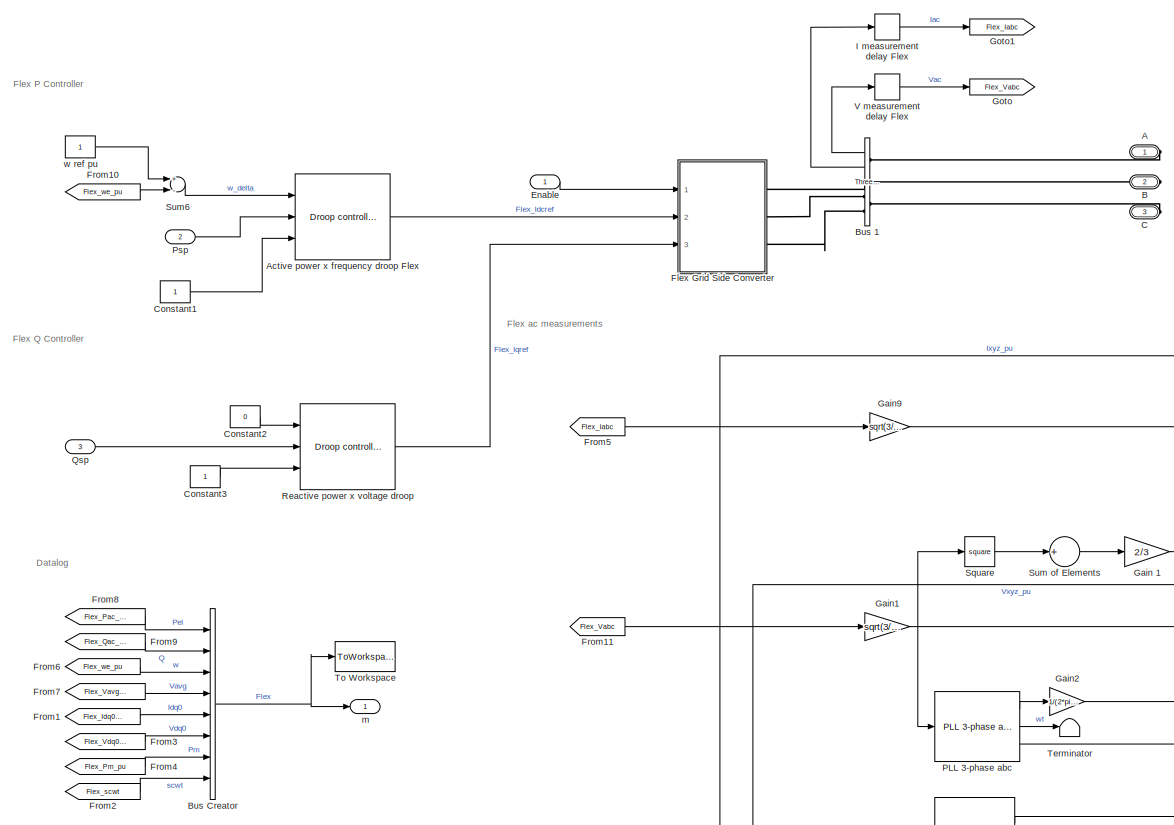
[diagram: Flex Load Converter - part 1/2, center side, full height]
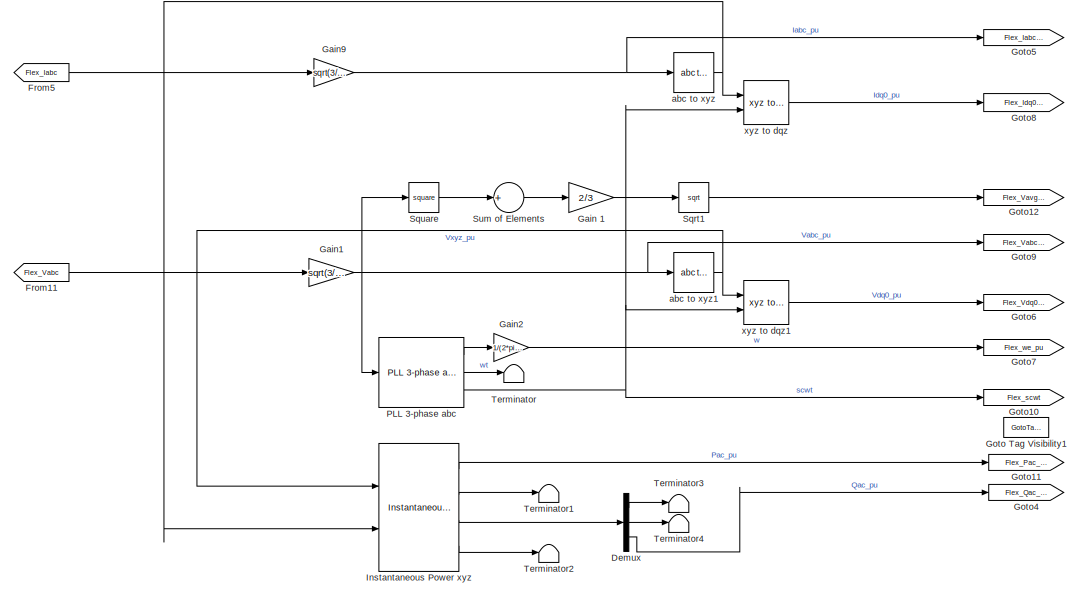
[diagram: Flex Load Converter - part 2/2, bottom right region]
BLOCK [SubSystem] Flex Load Converter
  Ports = [3, 1, 0, 0, 0, 0, 3]
  RequestExecContextInheritance = off
BLOCK [PMIOPort] Flex Load Converter/A
  Side = Right
BLOCK [Reference] Flex Load Converter/Active power x frequency droop Flex  REF=pwrsys/Controllers/Droop controller
  Ports = [3, 1]
  SourceBlock = pwrsys/Controllers/Droop controller
  SourceProductName = NTNU Power Systems
  SourceType = Droop controller
BLOCK [PMIOPort] Flex Load Converter/B
  Port = 2
  Side = Right
BLOCK [Reference] Flex Load Converter/Bus 1  REF=powerlib/Measurements/Three-Phase
V-I Measurement
  Ports = [0, 2, 0, 0, 0, 3, 3]
  SourceBlock = powerlib/Measurements/Three-Phase\nV-I Measurement
  SourceProductBaseCode = PS
  SourceProductName = Simscape Power Systems
  SourceType = Three-Phase VI Measurement
BLOCK [BusCreator] Flex Load Converter/Bus Creator
  DisplayOption = bar
  InheritFromInputs = on
  Inputs = 8
  Ports = [8, 1]
BLOCK [PMIOPort] Flex Load Converter/C
  Port = 3
  Side = Right
BLOCK [Constant] Flex Load Converter/Constant1
BLOCK [Constant] Flex Load Converter/Constant2
  Value = 0
BLOCK [Constant] Flex Load Converter/Constant3
BLOCK [Demux] Flex Load Converter/Demux
  DisplayOption = bar
  Outputs = 3
  Ports = [1, 3]
BLOCK [Inport] Flex Load Converter/Enable
  IconDisplay = Port number
BLOCK [SubSystem] Flex Load Converter/Flex Grid Side Converter
  Ports = [3, 0, 0, 0, 0, 0, 3]
  RequestExecContextInheritance = off
BLOCK [PMIOPort] Flex Load Converter/Flex Grid Side Converter/A
  Side = Right
BLOCK [PMIOPort] Flex Load Converter/Flex Grid Side Converter/B
  Port = 2
  Side = Right
BLOCK [PMIOPort] Flex Load Converter/Flex Grid Side Converter/C
  Port = 3
  Side = Right
BLOCK [Constant] Flex Load Converter/Flex Grid Side Converter/Constant2
  Value = 0
BLOCK [Reference] Flex Load Converter/Flex Grid Side Converter/Controlled Current Source  REF=powerlib/Electrical
Sources/Controlled Current Source
  Ports = [1, 0, 0, 0, 0, 1, 1]
  SourceBlock = powerlib/Electrical\nSources/Controlled Current Source
  SourceProductBaseCode = PS
  SourceProductName = Simscape Power Systems
  SourceType = Controlled Current Source
BLOCK [Reference] Flex Load Converter/Flex Grid Side Converter/Controlled Current Source1  REF=powerlib/Electrical
Sources/Controlled Current Source
  Ports = [1, 0, 0, 0, 0, 1, 1]
  SourceBlock = powerlib/Electrical\nSources/Controlled Current Source
  SourceProductBaseCode = PS
  SourceProductName = Simscape Power Systems
  SourceType = Controlled Current Source
BLOCK [Reference] Flex Load Converter/Flex Grid Side Converter/Controlled Current Source2  REF=powerlib/Electrical
Sources/Controlled Current Source
  Ports = [1, 0, 0, 0, 0, 1, 1]
  SourceBlock = powerlib/Electrical\nSources/Controlled Current Source
  SourceProductBaseCode = PS
  SourceProductName = Simscape Power Systems
  SourceType = Controlled Current Source
BLOCK [Demux] Flex Load Converter/Flex Grid Side Converter/Demux1
  DisplayOption = bar
  Outputs = 3
  Ports = [1, 3]
BLOCK [Inport] Flex Load Converter/Flex Grid Side Converter/Enable
  IconDisplay = Port number
BLOCK [From] Flex Load Converter/Flex Grid Side Converter/From9
  GotoTag = Flex_scwt
  TagVisibility = scoped
BLOCK [Gain] Flex Load Converter/Flex Grid Side Converter/Gain7
  Gain = flex.Sbase / flex.Vbase * sqrt(2/3)
  OutDataTypeStr = Inherit: Inherit via internal rule
  ParamDataTypeStr = Inherit: Inherit via internal rule
  SaturateOnIntegerOverflow = off
BLOCK [Inport] Flex Load Converter/Flex Grid Side Converter/Id Ref
  IconDisplay = Port number
  Port = 2
BLOCK [Inport] Flex Load Converter/Flex Grid Side Converter/Iq Ref
  IconDisplay = Port number
  Port = 3
BLOCK [Mux] Flex Load Converter/Flex Grid Side Converter/Mux
  DisplayOption = bar
  Inputs = 3
  Ports = [3, 1]
BLOCK [Product] Flex Load Converter/Flex Grid Side Converter/Product
  InputSameDT = off
  OutDataTypeStr = Inherit: Inherit via internal rule
  Ports = [2, 1]
  RndMeth = Floor
  SaturateOnIntegerOverflow = off
BLOCK [Reference] Flex Load Converter/Flex Grid Side Converter/Series RLC Branch  REF=powerlib/Elements/Series RLC Branch
  Ports = [0, 0, 0, 0, 0, 1, 1]
  SourceBlock = powerlib/Elements/Series RLC Branch
  SourceProductBaseCode = PS
  SourceProductName = Simscape Power Systems
  SourceType = Series RLC Branch
BLOCK [Reference] Flex Load Converter/Flex Grid Side Converter/Series RLC Branch1  REF=powerlib/Elements/Series RLC Branch
  Ports = [0, 0, 0, 0, 0, 1, 1]
  SourceBlock = powerlib/Elements/Series RLC Branch
  SourceProductBaseCode = PS
  SourceProductName = Simscape Power Systems
  SourceType = Series RLC Branch
BLOCK [Reference] Flex Load Converter/Flex Grid Side Converter/Series RLC Branch2  REF=powerlib/Elements/Series RLC Branch
  Ports = [0, 0, 0, 0, 0, 1, 1]
  SourceBlock = powerlib/Elements/Series RLC Branch
  SourceProductBaseCode = PS
  SourceProductName = Simscape Power Systems
  SourceType = Series RLC Branch
BLOCK [Reference] Flex Load Converter/Flex Grid Side Converter/Three-Phase Series RLC Branch  REF=powerlib/Elements/Three-Phase
Series RLC Branch
  AttributesFormatString = \n
  Ports = [0, 0, 0, 0, 0, 3, 3]
  SourceBlock = powerlib/Elements/Three-Phase\nSeries RLC Branch
  SourceProductBaseCode = PS
  SourceProductName = Simscape Power Systems
  SourceType = Three-Phase Series RLC Branch
BLOCK [Reference] Flex Load Converter/Flex Grid Side Converter/dqz to xyz  REF=pwrsys/Transformations/dqz to xyz
  Ports = [2, 1]
  SourceBlock = pwrsys/Transformations/dqz to xyz
  SourceProductName = NTNU Power Systems
  SourceType = Inverse Park transformation
BLOCK [Reference] Flex Load Converter/Flex Grid Side Converter/xyz to abc  REF=pwrsys/Transformations/xyz to abc
  Ports = [1, 1]
  SourceBlock = pwrsys/Transformations/xyz to abc
  SourceProductName = NTNU Power Systems
  SourceType = Inverse Clarke transformation
BLOCK [From] Flex Load Converter/From1
  GotoTag = Flex_Idq0_pu
BLOCK [From] Flex Load Converter/From10
  GotoTag = Flex_we_pu
BLOCK [From] Flex Load Converter/From11
  GotoTag = Flex_Vabc
BLOCK [From] Flex Load Converter/From2
  GotoTag = Flex_scwt
  TagVisibility = scoped
BLOCK [From] Flex Load Converter/From3
  GotoTag = Flex_Vdq0_pu
BLOCK [From] Flex Load Converter/From4
  GotoTag = Flex_Pm_pu
BLOCK [From] Flex Load Converter/From5
  GotoTag = Flex_Iabc
BLOCK [From] Flex Load Converter/From6
  GotoTag = Flex_we_pu
BLOCK [From] Flex Load Converter/From7
  GotoTag = Flex_Vavg_pu
BLOCK [From] Flex Load Converter/From8
  GotoTag = Flex_Pac_pu
BLOCK [From] Flex Load Converter/From9
  GotoTag = Flex_Qac_pu
BLOCK [Gain] Flex Load Converter/Gain 1 
  Gain = 2/3
  OutDataTypeStr = Inherit: Inherit via internal rule
  ParamDataTypeStr = Inherit: Inherit via internal rule
  SaturateOnIntegerOverflow = off
BLOCK [Gain] Flex Load Converter/Gain1
  Gain = sqrt(3/2)/flex.Vbase
  OutDataTypeStr = Inherit: Inherit via internal rule
  ParamDataTypeStr = Inherit: Inherit via internal rule
  SaturateOnIntegerOverflow = off
BLOCK [Gain] Flex Load Converter/Gain2
  Gain = 1/(2*pi*grid.fn)
  OutDataTypeStr = Inherit: Inherit via internal rule
  ParamDataTypeStr = Inherit: Inherit via internal rule
  SaturateOnIntegerOverflow = off
BLOCK [Gain] Flex Load Converter/Gain9
  Gain = sqrt(3/2)*flex.Vbase/flex.Sbase
  OutDataTypeStr = Inherit: Inherit via internal rule
  ParamDataTypeStr = Inherit: Inherit via internal rule
  SaturateOnIntegerOverflow = off
BLOCK [Goto] Flex Load Converter/Goto
  GotoTag = Flex_Vabc
BLOCK [GotoTagVisibility] Flex Load Converter/Goto Tag Visibility1
  GotoTag = Flex_scwt
BLOCK [Goto] Flex Load Converter/Goto1
  GotoTag = Flex_Iabc
BLOCK [Goto] Flex Load Converter/Goto10
  GotoTag = Flex_scwt
  TagVisibility = scoped
BLOCK [Goto] Flex Load Converter/Goto11
  GotoTag = Flex_Pac_pu
BLOCK [Goto] Flex Load Converter/Goto12
  GotoTag = Flex_Vavg_pu
BLOCK [Goto] Flex Load Converter/Goto4
  GotoTag = Flex_Qac_pu
BLOCK [Goto] Flex Load Converter/Goto5
  GotoTag = Flex_Iabc_pu
BLOCK [Goto] Flex Load Converter/Goto6
  GotoTag = Flex_Vdq0_pu
BLOCK [Goto] Flex Load Converter/Goto7
  GotoTag = Flex_we_pu
BLOCK [Goto] Flex Load Converter/Goto8
  GotoTag = Flex_Idq0_pu
BLOCK [Goto] Flex Load Converter/Goto9
  GotoTag = Flex_Vabc_pu
BLOCK [TransportDelay] Flex Load Converter/I measurement delay Flex
  DelayTime = simu.tStep
  Ports = [1, 1]
BLOCK [Reference] Flex Load Converter/Instantaneous Power xyz  REF=pwrsys/Measurement/Instantaneous Power xyz
  Ports = [2, 4]
  SourceBlock = pwrsys/Measurement/Instantaneous Power xyz
  SourceProductName = NTNU Power Systems
  SourceType = Instantaneous Power xyz
BLOCK [Reference] Flex Load Converter/PLL 3-phase abc  REF=pwrsys/PLLs/PLL 3-phase abc
  Ports = [1, 3]
  SourceBlock = pwrsys/PLLs/PLL 3-phase abc
  SourceProductName = NTNU Power Systems
  SourceType = 3-Phase PLL in the abc frame
BLOCK [Inport] Flex Load Converter/Psp
  IconDisplay = Port number
  Port = 2
BLOCK [Inport] Flex Load Converter/Qsp
  IconDisplay = Port number
  Port = 3
BLOCK [Reference] Flex Load Converter/Reactive power x voltage droop  REF=pwrsys/Controllers/Droop controller
  Ports = [3, 1]
  SourceBlock = pwrsys/Controllers/Droop controller
  SourceProductName = NTNU Power Systems
  SourceType = Droop controller
BLOCK [Sqrt] Flex Load Converter/Sqrt1
BLOCK [Math] Flex Load Converter/Square
  Operator = square
  Ports = [1, 1]
BLOCK [Sum] Flex Load Converter/Sum of Elements
  InputSameDT = off
  Inputs = +
  OutDataTypeStr = Inherit: Inherit via internal rule
  Ports = [1, 1]
  SaturateOnIntegerOverflow = off
BLOCK [Sum] Flex Load Converter/Sum6
  InputSameDT = off
  Inputs = +-
  OutDataTypeStr = Inherit: Inherit via internal rule
  Ports = [2, 1]
  SaturateOnIntegerOverflow = off
BLOCK [Terminator] Flex Load Converter/Terminator
BLOCK [Terminator] Flex Load Converter/Terminator1
BLOCK [Terminator] Flex Load Converter/Terminator2
BLOCK [Terminator] Flex Load Converter/Terminator3
BLOCK [Terminator] Flex Load Converter/Terminator4
BLOCK [ToWorkspace] Flex Load Converter/To Workspace
  Decimation = 20
  FixptAsFi = on
  MaxDataPoints = inf
  Ports = [1]
  SampleTime = -1
  Save2DSignal = 3-D array (concatenate along third dimension)
  SaveFormat = Timeseries
  VariableName = FlexLog
BLOCK [TransportDelay] Flex Load Converter/V measurement delay Flex
  DelayTime = simu.tStep
  Ports = [1, 1]
BLOCK [Reference] Flex Load Converter/abc to xyz  REF=pwrsys/Transformations/abc to xyz
  Ports = [1, 1]
  SourceBlock = pwrsys/Transformations/abc to xyz
  SourceProductName = NTNU Power Systems
  SourceType = Clarke transformation
BLOCK [Reference] Flex Load Converter/abc to xyz1  REF=pwrsys/Transformations/abc to xyz
  Ports = [1, 1]
  SourceBlock = pwrsys/Transformations/abc to xyz
  SourceProductName = NTNU Power Systems
  SourceType = Clarke transformation
BLOCK [Outport] Flex Load Converter/m
  IconDisplay = Port number
BLOCK [Constant] Flex Load Converter/w ref pu
BLOCK [Reference] Flex Load Converter/xyz to dqz  REF=pwrsys/Transformations/xyz to dqz
  Ports = [2, 1]
  SourceBlock = pwrsys/Transformations/xyz to dqz
  SourceProductName = NTNU Power Systems
  SourceType = Inverse Park transformation
BLOCK [Reference] Flex Load Converter/xyz to dqz1  REF=pwrsys/Transformations/xyz to dqz
  Ports = [2, 1]
  SourceBlock = pwrsys/Transformations/xyz to dqz
  SourceProductName = NTNU Power Systems
  SourceType = Inverse Park transformation
BLOCK [Step] Flex Load Enable
  SampleTime = 0
  Time = 4/grid.fn
BLOCK [From] From10
  GotoTag = GT1_we_pu
BLOCK [From] From2
  GotoTag = ES2_Idc
BLOCK [From] From9
  GotoTag = ES2_Vdc
BLOCK [Gain] Gain1
  Gain = -tan(acos(ld.flex.cosphi))
  OutDataTypeStr = Inherit: Inherit via internal rule
  ParamDataTypeStr = Inherit: Inherit via internal rule
  SaturateOnIntegerOverflow = off
BLOCK [Goto] Goto1
  GotoTag = ES2_Idc
BLOCK [Goto] Goto2
  GotoTag = ES2_Vdc
BLOCK [Goto] Goto7
  GotoTag = GT1_we_pu
BLOCK [Reference] Ground1  REF=powerlib/Elements/Ground
  Ports = [0, 0, 0, 0, 0, 1]
  SourceBlock = powerlib/Elements/Ground
  SourceProductBaseCode = PS
  SourceProductName = Simscape Power Systems
  SourceType = Ground
BLOCK [Reference] Line 5km  REF=powerlib/Elements/Three-Phase
Series RLC Branch
  AttributesFormatString = \n
  Ports = [0, 0, 0, 0, 0, 3, 3]
  SourceBlock = powerlib/Elements/Three-Phase\nSeries RLC Branch
  SourceProductBaseCode = PS
  SourceProductName = Simscape Power Systems
  SourceType = Three-Phase Series RLC Branch
BLOCK [Logic] Logical Operator
  AllPortsSameDT = off
  OutDataTypeStr = boolean
  Ports = [2, 1]
BLOCK [Step] Step Load Enable
  After = (1 - ld.step.st)
  Before = ld.step.st
  SampleTime = 0
  Time = simu.tLDstep
BLOCK [Reference] Step load  REF=powerlib/Elements/Three-Phase
Series RLC Load
  AttributesFormatString = \n
  Ports = [0, 0, 0, 0, 0, 3]
  SourceBlock = powerlib/Elements/Three-Phase\nSeries RLC Load
  SourceProductBaseCode = PS
  SourceProductName = Simscape Power Systems
  SourceType = Three-Phase Series RLC Load
BLOCK [Terminator] Terminator
BLOCK [Terminator] Terminator1
BLOCK [Terminator] Terminator2
BLOCK [Reference] Three-Phase Breaker  REF=powerlib/Elements/Three-Phase Breaker
  Ports = [1, 0, 0, 0, 0, 3, 3]
  SourceBlock = powerlib/Elements/Three-Phase Breaker
  SourceProductBaseCode = PS
  SourceProductName = Simscape Power Systems
  SourceType = Three-Phase Breaker
BLOCK [SubSystem] Turbo Generators
  Ports = [2, 1, 0, 0, 0, 0, 3]
  RequestExecContextInheritance = off
  SystemSampleTime = 10*sim.tStep
BLOCK [PMIOPort] Turbo Generators/A
  Side = Right
BLOCK [PMIOPort] Turbo Generators/B
  Port = 2
  Side = Right
BLOCK [BusCreator] Turbo Generators/Bus Creator
  DisplayOption = bar
  InheritFromInputs = on
  Inputs = 7
  Ports = [7, 1]
BLOCK [BusSelector] Turbo Generators/Bus Selector
  OutputAsBus = off
  OutputSignals = Mechanical.Rotor speed  wm  (pu),dq0 components.Stator voltage  vq (pu),dq0 components.Stator voltage  vd (pu),Output active power   Peo (pu),Output reactive power  Qeo (pu),dq0 components.Field current  ifd (pu)
  Ports = [1, 6]
BLOCK [PMIOPort] Turbo Generators/C
  Port = 3
  Side = Right
BLOCK [SubSystem] Turbo Generators/Controllers
  Ports = [5, 2]
  RequestExecContextInheritance = off
  SystemSampleTime = 1/(20*grid.fn)
BLOCK [Reference] Turbo Generators/Controllers/Active power x frequency droop GT1  REF=pwrsys/Controllers/Droop controller
  Ports = [3, 1]
  SourceBlock = pwrsys/Controllers/Droop controller
  SourceProductName = NTNU Power Systems
  SourceType = Droop controller
BLOCK [Outport] Turbo Generators/Controllers/Efd
  IconDisplay = Port number
  Port = 2
BLOCK [Reference] Turbo Generators/Controllers/GT1 Excitation  REF=sps_avr/ST1A
Excitation System
  Ports = [4, 1]
  SourceBlock = sps_avr/ST1A\nExcitation System
  SourceProductBaseCode = PS
  SourceProductName = Simscape Power Systems
  SourceType = ST1A Excitation System
BLOCK [Constant] Turbo Generators/Controllers/GT1 P Comp pu
  SampleTime = -1
BLOCK [Constant] Turbo Generators/Controllers/GT1 PSS
  SampleTime = -1
  Value = 0
BLOCK [Inport] Turbo Generators/Controllers/Ifd
  IconDisplay = Port number
  Port = 5
BLOCK [Outport] Turbo Generators/Controllers/Pm
  IconDisplay = Port number
BLOCK [Inport] Turbo Generators/Controllers/Psp
  IconDisplay = Port number
  Port = 2
BLOCK [RateTransition] Turbo Generators/Controllers/Rate Transition1
BLOCK [RateTransition] Turbo Generators/Controllers/Rate Transition2
BLOCK [RateTransition] Turbo Generators/Controllers/Rate Transition3
BLOCK [RateTransition] Turbo Generators/Controllers/Rate Transition4
BLOCK [RateTransition] Turbo Generators/Controllers/Rate Transition5
BLOCK [Sum] Turbo Generators/Controllers/Sum1
  InputSameDT = off
  Inputs = -+
  OutDataTypeStr = Inherit: Inherit via internal rule
  Ports = [2, 1]
  SaturateOnIntegerOverflow = off
BLOCK [DiscreteIntegrator] Turbo Generators/Controllers/Turbine delay
  ICPrevOutput = DiscIntNeverNeededParam
  ICPrevScaledInput = DiscIntNeverNeededParam
  InitialCondition = gt1.P.Ref
  InitialConditionSetting = Auto
  LimitOutput = on
  LowerSaturationLimit = 0
  Ports = [1, 1]
  SampleTime = -1
  UpperSaturationLimit = SMcosphi
  gainval = 1/TurbT
BLOCK [Inport] Turbo Generators/Controllers/Vm
  IconDisplay = Port number
  Port = 4
BLOCK [Inport] Turbo Generators/Controllers/Vref
  IconDisplay = Port number
  Port = 3
BLOCK [Inport] Turbo Generators/Controllers/deltaw
  IconDisplay = Port number
BLOCK [TransferFcn] Turbo Generators/Delta low-pass
  Denominator = [(ExcTr/3) 1]
BLOCK [From] Turbo Generators/From1
  GotoTag = Vs_pu
BLOCK [From] Turbo Generators/From10
  GotoTag = we_pu
BLOCK [From] Turbo Generators/From11
  GotoTag = Vfd_pu
BLOCK [From] Turbo Generators/From2
  GotoTag = Ifd_pu
BLOCK [From] Turbo Generators/From3
  GotoTag = Pm_pu
BLOCK [From] Turbo Generators/From5
  GotoTag = we_pu
BLOCK [From] Turbo Generators/From6
  GotoTag = Vs_pu
BLOCK [From] Turbo Generators/From7
  GotoTag = Pac_pu
BLOCK [From] Turbo Generators/From8
  GotoTag = Qac_pu
BLOCK [From] Turbo Generators/From9
  GotoTag = Ifd_pu
BLOCK [Reference] Turbo Generators/GT SM  REF=powerlib/Machines/Synchronous Machine
pu Standard
  Ports = [2, 1, 0, 0, 0, 0, 3]
  SourceBlock = powerlib/Machines/Synchronous Machine\npu Standard
  SourceProductBaseCode = PS
  SourceProductName = Simscape Power Systems
  SourceType = Synchronous Machine
BLOCK [Goto] Turbo Generators/Goto1
  GotoTag = Vfd_pu
BLOCK [Goto] Turbo Generators/Goto11
  GotoTag = Pac_pu
BLOCK [Goto] Turbo Generators/Goto2
  GotoTag = Pm_pu
BLOCK [Goto] Turbo Generators/Goto3
  GotoTag = Ifd_pu
BLOCK [Goto] Turbo Generators/Goto4
  GotoTag = Qac_pu
BLOCK [Goto] Turbo Generators/Goto6
  GotoTag = Vs_pu
BLOCK [Goto] Turbo Generators/Goto7
  GotoTag = we_pu
BLOCK [Math] Turbo Generators/Hypot
  Operator = hypot
  Ports = [2, 1]
BLOCK [Inport] Turbo Generators/Psp
  IconDisplay = Port number
BLOCK [Sum] Turbo Generators/Sum6
  InputSameDT = off
  Inputs = -+
  OutDataTypeStr = Inherit: Inherit via internal rule
  Ports = [2, 1]
  SaturateOnIntegerOverflow = off
BLOCK [ToWorkspace] Turbo Generators/To Workspace
  Decimation = 20
  FixptAsFi = on
  MaxDataPoints = inf
  Ports = [1]
  SampleTime = -1
  Save2DSignal = 3-D array (concatenate along third dimension)
  SaveFormat = Timeseries
  VariableName = GTLog
BLOCK [Inport] Turbo Generators/Vsp
  IconDisplay = Port number
  Port = 2
BLOCK [Outport] Turbo Generators/m
  IconDisplay = Port number
BLOCK [Constant] Turbo Generators/w ref pu
BLOCK [Constant] Vgt1 ref
  Value = 1.01
BLOCK [SubSystem] Wind Farm
  Ports = [0, 1]
  RequestExecContextInheritance = off
BLOCK [SubSystem] Wind Farm Converter
  Ports = [3, 1, 0, 0, 0, 0, 3]
  RequestExecContextInheritance = off
BLOCK [PMIOPort] Wind Farm Converter/A
  Side = Right
BLOCK [Reference] Wind Farm Converter/Active power x frequency droop Wind Farm  REF=pwrsys/Controllers/Droop controller
  Ports = [3, 1]
  SourceBlock = pwrsys/Controllers/Droop controller
  SourceProductName = NTNU Power Systems
  SourceType = Droop controller
BLOCK [PMIOPort] Wind Farm Converter/B
  Port = 2
  Side = Right
BLOCK [Reference] Wind Farm Converter/Bus 1  REF=powerlib/Measurements/Three-Phase
V-I Measurement
  Ports = [0, 2, 0, 0, 0, 3, 3]
  SourceBlock = powerlib/Measurements/Three-Phase\nV-I Measurement
  SourceProductBaseCode = PS
  SourceProductName = Simscape Power Systems
  SourceType = Three-Phase VI Measurement
BLOCK [BusCreator] Wind Farm Converter/Bus Creator
  DisplayOption = bar
  InheritFromInputs = on
  Inputs = 8
  Ports = [8, 1]
BLOCK [PMIOPort] Wind Farm Converter/C
  Port = 3
  Side = Right
BLOCK [Constant] Wind Farm Converter/Constant2
  Value = 1.05
BLOCK [Constant] Wind Farm Converter/Constant4
  Value = 0
BLOCK [Demux] Wind Farm Converter/Demux
  DisplayOption = bar
  Outputs = 3
  Ports = [1, 3]
BLOCK [Inport] Wind Farm Converter/Enable
  IconDisplay = Port number
BLOCK [From] Wind Farm Converter/From1
  GotoTag = WT_Idq0_pu
BLOCK [From] Wind Farm Converter/From10
  GotoTag = WT_scwt
  TagVisibility = scoped
BLOCK [From] Wind Farm Converter/From11
  GotoTag = WT_Vabc
BLOCK [From] Wind Farm Converter/From2
  GotoTag = WT_Vdq0_pu
BLOCK [From] Wind Farm Converter/From3
  GotoTag = WT_Iabc
BLOCK [From] Wind Farm Converter/From4
  GotoTag = WT_Pm_pu
BLOCK [From] Wind Farm Converter/From5
  GotoTag = WT_Vavg_pu
BLOCK [From] Wind Farm Converter/From6
  GotoTag = WT_we_pu
BLOCK [From] Wind Farm Converter/From7
  GotoTag = WT_Vavg_pu
BLOCK [From] Wind Farm Converter/From8
  GotoTag = WT_Pac_pu
BLOCK [From] Wind Farm Converter/From9
  GotoTag = WT_Qac_pu
BLOCK [Gain] Wind Farm Converter/Gain 1 
  Gain = 2/3
  OutDataTypeStr = Inherit: Inherit via internal rule
  ParamDataTypeStr = Inherit: Inherit via internal rule
  SaturateOnIntegerOverflow = off
BLOCK [Gain] Wind Farm Converter/Gain1
  Gain = sqrt(3/2)/WT.Vbase
  OutDataTypeStr = Inherit: Inherit via internal rule
  ParamDataTypeStr = Inherit: Inherit via internal rule
  SaturateOnIntegerOverflow = off
BLOCK [Gain] Wind Farm Converter/Gain2
  Gain = 1/(2*pi*grid.fn)
  OutDataTypeStr = Inherit: Inherit via internal rule
  ParamDataTypeStr = Inherit: Inherit via internal rule
  SaturateOnIntegerOverflow = off
BLOCK [Gain] Wind Farm Converter/Gain9
  Gain = sqrt(3/2)*WT.Vbase/WT.Sbase
  OutDataTypeStr = Inherit: Inherit via internal rule
  ParamDataTypeStr = Inherit: Inherit via internal rule
  SaturateOnIntegerOverflow = off
BLOCK [Goto] Wind Farm Converter/Goto
  GotoTag = WT_Vabc
BLOCK [GotoTagVisibility] Wind Farm Converter/Goto Tag Visibility1
  GotoTag = WT_scwt
BLOCK [Goto] Wind Farm Converter/Goto1
  GotoTag = WT_Iabc
BLOCK [Goto] Wind Farm Converter/Goto10
  GotoTag = WT_scwt
  TagVisibility = scoped
BLOCK [Goto] Wind Farm Converter/Goto11
  GotoTag = WT_Pac_pu
BLOCK [Goto] Wind Farm Converter/Goto12
  GotoTag = WT_Vavg_pu
BLOCK [Goto] Wind Farm Converter/Goto2
  GotoTag = WT_Pm_pu
BLOCK [Goto] Wind Farm Converter/Goto4
  GotoTag = WT_Qac_pu
BLOCK [Goto] Wind Farm Converter/Goto5
  GotoTag = WT_Iabc_pu
BLOCK [Goto] Wind Farm Converter/Goto6
  GotoTag = WT_Vdq0_pu
BLOCK [Goto] Wind Farm Converter/Goto7
  GotoTag = WT_we_pu
BLOCK [Goto] Wind Farm Converter/Goto8
  GotoTag = WT_Idq0_pu
BLOCK [Goto] Wind Farm Converter/Goto9
  GotoTag = WT_Vabc_pu
BLOCK [TransportDelay] Wind Farm Converter/I measurement delay WT
  DelayTime = simu.tStep
  Ports = [1, 1]
BLOCK [Reference] Wind Farm Converter/Instantaneous Power xyz  REF=pwrsys/Measurement/Instantaneous Power xyz
  Ports = [2, 4]
  SourceBlock = pwrsys/Measurement/Instantaneous Power xyz
  SourceProductName = NTNU Power Systems
  SourceType = Instantaneous Power xyz
BLOCK [Reference] Wind Farm Converter/PLL 3-phase abc  REF=pwrsys/PLLs/PLL 3-phase abc
  Ports = [1, 3]
  SourceBlock = pwrsys/PLLs/PLL 3-phase abc
  SourceProductName = NTNU Power Systems
  SourceType = 3-Phase PLL in the abc frame
BLOCK [Inport] Wind Farm Converter/Psp
  IconDisplay = Port number
  Port = 2
BLOCK [Inport] Wind Farm Converter/Qsp
  IconDisplay = Port number
  Port = 3
BLOCK [Reference] Wind Farm Converter/Reactive power x voltage droop Wind Farm  REF=pwrsys/Controllers/Droop controller
  Ports = [3, 1]
  SourceBlock = pwrsys/Controllers/Droop controller
  SourceProductName = NTNU Power Systems
  SourceType = Droop controller
BLOCK [Sqrt] Wind Farm Converter/Sqrt1
BLOCK [Math] Wind Farm Converter/Square
  Operator = square
  Ports = [1, 1]
BLOCK [Sum] Wind Farm Converter/Sum of Elements
  InputSameDT = off
  Inputs = +
  OutDataTypeStr = Inherit: Inherit via internal rule
  Ports = [1, 1]
  SaturateOnIntegerOverflow = off
BLOCK [Sum] Wind Farm Converter/Sum1
  InputSameDT = off
  Inputs = +-
  OutDataTypeStr = Inherit: Inherit via internal rule
  Ports = [2, 1]
  SaturateOnIntegerOverflow = off
BLOCK [Terminator] Wind Farm Converter/Terminator
BLOCK [Terminator] Wind Farm Converter/Terminator1
BLOCK [Terminator] Wind Farm Converter/Terminator2
BLOCK [Terminator] Wind Farm Converter/Terminator3
BLOCK [Terminator] Wind Farm Converter/Terminator4
BLOCK [ToWorkspace] Wind Farm Converter/To Workspace
  Decimation = 20
  FixptAsFi = on
  MaxDataPoints = inf
  Ports = [1]
  SampleTime = -1
  Save2DSignal = 3-D array (concatenate along third dimension)
  SaveFormat = Timeseries
  VariableName = WTLog
BLOCK [TransportDelay] Wind Farm Converter/V measurement delay WT
  DelayTime = simu.tStep
  Ports = [1, 1]
BLOCK [TransferFcn] Wind Farm Converter/Vac lag filter
  Denominator = [0.01 1]
  Numerator = [0.001 1]
BLOCK [SubSystem] Wind Farm Converter/WT Grid Side Converter
  Ports = [3, 0, 0, 0, 0, 0, 3]
  RequestExecContextInheritance = off
BLOCK [PMIOPort] Wind Farm Converter/WT Grid Side Converter/A
  Side = Right
BLOCK [PMIOPort] Wind Farm Converter/WT Grid Side Converter/B
  Port = 2
  Side = Right
BLOCK [PMIOPort] Wind Farm Converter/WT Grid Side Converter/C
  Port = 3
  Side = Right
BLOCK [Constant] Wind Farm Converter/WT Grid Side Converter/Constant2
  Value = 0
BLOCK [Reference] Wind Farm Converter/WT Grid Side Converter/Controlled Current Source  REF=powerlib/Electrical
Sources/Controlled Current Source
  Ports = [1, 0, 0, 0, 0, 1, 1]
  SourceBlock = powerlib/Electrical\nSources/Controlled Current Source
  SourceProductBaseCode = PS
  SourceProductName = Simscape Power Systems
  SourceType = Controlled Current Source
BLOCK [Reference] Wind Farm Converter/WT Grid Side Converter/Controlled Current Source1  REF=powerlib/Electrical
Sources/Controlled Current Source
  Ports = [1, 0, 0, 0, 0, 1, 1]
  SourceBlock = powerlib/Electrical\nSources/Controlled Current Source
  SourceProductBaseCode = PS
  SourceProductName = Simscape Power Systems
  SourceType = Controlled Current Source
BLOCK [Reference] Wind Farm Converter/WT Grid Side Converter/Controlled Current Source2  REF=powerlib/Electrical
Sources/Controlled Current Source
  Ports = [1, 0, 0, 0, 0, 1, 1]
  SourceBlock = powerlib/Electrical\nSources/Controlled Current Source
  SourceProductBaseCode = PS
  SourceProductName = Simscape Power Systems
  SourceType = Controlled Current Source
BLOCK [Demux] Wind Farm Converter/WT Grid Side Converter/Demux1
  DisplayOption = bar
  Outputs = 3
  Ports = [1, 3]
BLOCK [Inport] Wind Farm Converter/WT Grid Side Converter/Enable
  IconDisplay = Port number
BLOCK [From] Wind Farm Converter/WT Grid Side Converter/From9
  GotoTag = WT_scwt
  TagVisibility = scoped
BLOCK [Gain] Wind Farm Converter/WT Grid Side Converter/Gain7
  Gain = WT.Sbase / WT.Vbase * sqrt(2/3)
  OutDataTypeStr = Inherit: Inherit via internal rule
  ParamDataTypeStr = Inherit: Inherit via internal rule
  SaturateOnIntegerOverflow = off
BLOCK [Inport] Wind Farm Converter/WT Grid Side Converter/Id Ref
  IconDisplay = Port number
  Port = 2
BLOCK [Inport] Wind Farm Converter/WT Grid Side Converter/Iq Ref
  IconDisplay = Port number
  Port = 3
BLOCK [Mux] Wind Farm Converter/WT Grid Side Converter/Mux
  DisplayOption = bar
  Inputs = 3
  Ports = [3, 1]
BLOCK [Product] Wind Farm Converter/WT Grid Side Converter/Product
  InputSameDT = off
  OutDataTypeStr = Inherit: Inherit via internal rule
  Ports = [2, 1]
  RndMeth = Floor
  SaturateOnIntegerOverflow = off
BLOCK [Reference] Wind Farm Converter/WT Grid Side Converter/Series RLC Branch  REF=powerlib/Elements/Series RLC Branch
  Ports = [0, 0, 0, 0, 0, 1, 1]
  SourceBlock = powerlib/Elements/Series RLC Branch
  SourceProductBaseCode = PS
  SourceProductName = Simscape Power Systems
  SourceType = Series RLC Branch
BLOCK [Reference] Wind Farm Converter/WT Grid Side Converter/Series RLC Branch1  REF=powerlib/Elements/Series RLC Branch
  Ports = [0, 0, 0, 0, 0, 1, 1]
  SourceBlock = powerlib/Elements/Series RLC Branch
  SourceProductBaseCode = PS
  SourceProductName = Simscape Power Systems
  SourceType = Series RLC Branch
BLOCK [Reference] Wind Farm Converter/WT Grid Side Converter/Series RLC Branch2  REF=powerlib/Elements/Series RLC Branch
  Ports = [0, 0, 0, 0, 0, 1, 1]
  SourceBlock = powerlib/Elements/Series RLC Branch
  SourceProductBaseCode = PS
  SourceProductName = Simscape Power Systems
  SourceType = Series RLC Branch
BLOCK [Reference] Wind Farm Converter/WT Grid Side Converter/Three-Phase Series RLC Branch  REF=powerlib/Elements/Three-Phase
Series RLC Branch
  AttributesFormatString = \n
  Ports = [0, 0, 0, 0, 0, 3, 3]
  SourceBlock = powerlib/Elements/Three-Phase\nSeries RLC Branch
  SourceProductBaseCode = PS
  SourceProductName = Simscape Power Systems
  SourceType = Three-Phase Series RLC Branch
BLOCK [Reference] Wind Farm Converter/WT Grid Side Converter/dqz to xyz  REF=pwrsys/Transformations/dqz to xyz
  Ports = [2, 1]
  SourceBlock = pwrsys/Transformations/dqz to xyz
  SourceProductName = NTNU Power Systems
  SourceType = Inverse Park transformation
BLOCK [Reference] Wind Farm Converter/WT Grid Side Converter/xyz to abc  REF=pwrsys/Transformations/xyz to abc
  Ports = [1, 1]
  SourceBlock = pwrsys/Transformations/xyz to abc
  SourceProductName = NTNU Power Systems
  SourceType = Inverse Clarke transformation
BLOCK [Reference] Wind Farm Converter/abc to xyz  REF=pwrsys/Transformations/abc to xyz
  Ports = [1, 1]
  SourceBlock = pwrsys/Transformations/abc to xyz
  SourceProductName = NTNU Power Systems
  SourceType = Clarke transformation
BLOCK [Reference] Wind Farm Converter/abc to xyz1  REF=pwrsys/Transformations/abc to xyz
  Ports = [1, 1]
  SourceBlock = pwrsys/Transformations/abc to xyz
  SourceProductName = NTNU Power Systems
  SourceType = Clarke transformation
BLOCK [Outport] Wind Farm Converter/m
  IconDisplay = Port number
BLOCK [Reference] Wind Farm Converter/xyz to dqz  REF=pwrsys/Transformations/xyz to dqz
  Ports = [2, 1]
  SourceBlock = pwrsys/Transformations/xyz to dqz
  SourceProductName = NTNU Power Systems
  SourceType = Inverse Park transformation
BLOCK [Reference] Wind Farm Converter/xyz to dqz1  REF=pwrsys/Transformations/xyz to dqz
  Ports = [2, 1]
  SourceBlock = pwrsys/Transformations/xyz to dqz
  SourceProductName = NTNU Power Systems
  SourceType = Inverse Park transformation
BLOCK [Step] Wind Farm Disable
  After = 0
  Before = 1
  SampleTime = 0
  Time = simu.tWToff
BLOCK [Step] Wind Farm Enable
  SampleTime = 0
  Time = 4/grid.fn
BLOCK [Sum] Wind Farm/Add
  InputSameDT = off
  Inputs = -+
  OutDataTypeStr = Inherit: Inherit via internal rule
  Ports = [2, 1]
  SaturateOnIntegerOverflow = off
BLOCK [DiscreteIntegrator] Wind Farm/First order delay
  ICPrevOutput = DiscIntNeverNeededParam
  ICPrevScaledInput = DiscIntNeverNeededParam
  InitialCondition = WT.wspeed
  Ports = [1, 1]
  SampleTime = -1
  gainval = 1
BLOCK [Gain] Wind Farm/Gain4
  Gain = -WT.Prated/WT.Sbase
  OutDataTypeStr = Inherit: Inherit via internal rule
  ParamDataTypeStr = Inherit: Inherit via internal rule
  SaturateOnIntegerOverflow = off
BLOCK [Constant] Wind Farm/Inertia
  Value = WT.Tlp
BLOCK [Lookup] Wind Farm/Power curve pu
  InputValues = WT.pcurve.wind
  SaturateOnIntegerOverflow = off
  Table = WT.pcurve.power
BLOCK [Product] Wind Farm/Product
  InputSameDT = off
  Inputs = */
  OutDataTypeStr = Inherit: Inherit via internal rule
  Ports = [2, 1]
  RndMeth = Floor
  SaturateOnIntegerOverflow = off
BLOCK [Product] Wind Farm/Product1
  InputSameDT = off
  Inputs = /*
  OutDataTypeStr = Inherit: Inherit via internal rule
  Ports = [2, 1]
  RndMeth = Floor
  SaturateOnIntegerOverflow = off
BLOCK [Outport] Wind Farm/Pwt
  IconDisplay = Port number
BLOCK [RateLimiter] Wind Farm/Rate Limiter1
  FallingSlewLimit = -100
  RisingSlewLimit = 100
  SampleTimeMode = inherited
BLOCK [SubSystem] Wind Farm/Wind Model Kaimal spectrum according to IEC61400-1
  Ports = [1, 1]
  RequestExecContextInheritance = off
  TreatAsAtomicUnit = on
BLOCK [Fcn] Wind Farm/Wind Model Kaimal spectrum according to IEC61400-1/Fcn
  Expr = turb_int*sqrt(L*u(1))/100/sqrt(2)
BLOCK [SubSystem] Wind Farm/Wind Model Kaimal spectrum according to IEC61400-1/Kaimal Filter
  Ports = [2, 1]
  RequestExecContextInheritance = off
BLOCK [Gain] Wind Farm/Wind Model Kaimal spectrum according to IEC61400-1/Kaimal Filter/A//D
  Gain = 0.0182/1.3463
BLOCK [SubSystem] Wind Farm/Wind Model Kaimal spectrum according to IEC61400-1/Kaimal Filter/Coefficients
  Ports = [1, 4]
  RequestExecContextInheritance = off
BLOCK [Outport] Wind Farm/Wind Model Kaimal spectrum according to IEC61400-1/Kaimal Filter/Coefficients/BD
  IconDisplay = Port number
BLOCK [Fcn] Wind Farm/Wind Model Kaimal spectrum according to IEC61400-1/Kaimal Filter/Coefficients/BD coeff
  Expr = 1.3653/1.3463/(L/2/pi/u(1))
BLOCK [Outport] Wind Farm/Wind Model Kaimal spectrum according to IEC61400-1/Kaimal Filter/Coefficients/CD
  IconDisplay = Port number
  Port = 2
BLOCK [Fcn] Wind Farm/Wind Model Kaimal spectrum according to IEC61400-1/Kaimal Filter/Coefficients/CD coeff
  Expr = 0.9846/1.3463/(L/2/pi/u(1))^2
BLOCK [Outport] Wind Farm/Wind Model Kaimal spectrum according to IEC61400-1/Kaimal Filter/Coefficients/ED
  IconDisplay = Port number
  Port = 3
BLOCK [Fcn] Wind Farm/Wind Model Kaimal spectrum according to IEC61400-1/Kaimal Filter/Coefficients/ED coeff
  Expr = 3.7593/1.3463/(L/2/pi/u(1))
BLOCK [Outport] Wind Farm/Wind Model Kaimal spectrum according to IEC61400-1/Kaimal Filter/Coefficients/FD
  IconDisplay = Port number
  Port = 4
BLOCK [Fcn] Wind Farm/Wind Model Kaimal spectrum according to IEC61400-1/Kaimal Filter/Coefficients/FD coeff
  Expr = 1/1.3463/(L/2/pi/u(1))^2
BLOCK [Inport] Wind Farm/Wind Model Kaimal spectrum according to IEC61400-1/Kaimal Filter/Coefficients/avg_wind
  IconDisplay = Port number
BLOCK [From] Wind Farm/Wind Model Kaimal spectrum according to IEC61400-1/Kaimal Filter/From1
  CloseFcn = tagdialog Close
  DialogController = Simulink.DDGSource
  GotoTag = BD
BLOCK [From] Wind Farm/Wind Model Kaimal spectrum according to IEC61400-1/Kaimal Filter/From2
  CloseFcn = tagdialog Close
  DialogController = Simulink.DDGSource
  GotoTag = CD
BLOCK [From] Wind Farm/Wind Model Kaimal spectrum according to IEC61400-1/Kaimal Filter/From3
  CloseFcn = tagdialog Close
  DialogController = Simulink.DDGSource
  GotoTag = ED
BLOCK [From] Wind Farm/Wind Model Kaimal spectrum according to IEC61400-1/Kaimal Filter/From4
  CloseFcn = tagdialog Close
  DialogController = Simulink.DDGSource
  GotoTag = FD
BLOCK [Goto] Wind Farm/Wind Model Kaimal spectrum according to IEC61400-1/Kaimal Filter/Goto
  DialogController = Simulink.DDGSource
  GotoTag = BD
BLOCK [Goto] Wind Farm/Wind Model Kaimal spectrum according to IEC61400-1/Kaimal Filter/Goto1
  DialogController = Simulink.DDGSource
  GotoTag = CD
BLOCK [Goto] Wind Farm/Wind Model Kaimal spectrum according to IEC61400-1/Kaimal Filter/Goto2
  DialogController = Simulink.DDGSource
  GotoTag = ED
BLOCK [Goto] Wind Farm/Wind Model Kaimal spectrum according to IEC61400-1/Kaimal Filter/Goto3
  DialogController = Simulink.DDGSource
  GotoTag = FD
BLOCK [Inport] Wind Farm/Wind Model Kaimal spectrum according to IEC61400-1/Kaimal Filter/In
  IconDisplay = Port number
  Port = 2
BLOCK [Integrator] Wind Farm/Wind Model Kaimal spectrum according to IEC61400-1/Kaimal Filter/Integrator
  Ports = [1, 1]
BLOCK [Integrator] Wind Farm/Wind Model Kaimal spectrum according to IEC61400-1/Kaimal Filter/Integrator1
  Ports = [1, 1]
BLOCK [Outport] Wind Farm/Wind Model Kaimal spectrum according to IEC61400-1/Kaimal Filter/Out
  IconDisplay = Port number
BLOCK [Product] Wind Farm/Wind Model Kaimal spectrum according to IEC61400-1/Kaimal Filter/Product
  InputSameDT = off
  Ports = [2, 1]
  RndMeth = Floor
BLOCK [Product] Wind Farm/Wind Model Kaimal spectrum according to IEC61400-1/Kaimal Filter/Product1
  InputSameDT = off
  Ports = [2, 1]
  RndMeth = Floor
BLOCK [Product] Wind Farm/Wind Model Kaimal spectrum according to IEC61400-1/Kaimal Filter/Product2
  InputSameDT = off
  Ports = [2, 1]
  RndMeth = Floor
BLOCK [Product] Wind Farm/Wind Model Kaimal spectrum according to IEC61400-1/Kaimal Filter/Product3
  InputSameDT = off
  Ports = [2, 1]
  RndMeth = Floor
BLOCK [Sum] Wind Farm/Wind Model Kaimal spectrum according to IEC61400-1/Kaimal Filter/Sum
  IconShape = round
  InputSameDT = off
  Inputs = |++
  OutDataTypeStr = Inherit: Inherit via internal rule
  Ports = [2, 1]
BLOCK [Sum] Wind Farm/Wind Model Kaimal spectrum according to IEC61400-1/Kaimal Filter/Sum1
  IconShape = round
  InputSameDT = off
  Inputs = ++-
  OutDataTypeStr = Inherit: Inherit via internal rule
  Ports = [3, 1]
BLOCK [Sum] Wind Farm/Wind Model Kaimal spectrum according to IEC61400-1/Kaimal Filter/Sum2
  IconShape = round
  InputSameDT = off
  Inputs = +|-
  OutDataTypeStr = Inherit: Inherit via internal rule
  Ports = [2, 1]
BLOCK [Inport] Wind Farm/Wind Model Kaimal spectrum according to IEC61400-1/Kaimal Filter/avg_wind
  IconDisplay = Port number
BLOCK [Product] Wind Farm/Wind Model Kaimal spectrum according to IEC61400-1/Product
  InputSameDT = off
  Ports = [2, 1]
  RndMeth = Floor
BLOCK [Sum] Wind Farm/Wind Model Kaimal spectrum according to IEC61400-1/Sum2
  Ports = [2, 1]
BLOCK [SubSystem] Wind Farm/Wind Model Kaimal spectrum according to IEC61400-1/White Noise_1
  Ports = [0, 1]
  RequestExecContextInheritance = off
  ShowPortLabels = none
BLOCK [Gain] Wind Farm/Wind Model Kaimal spectrum according to IEC61400-1/White Noise_1/Gain
  Gain = [sqrt(Cov)]/[sqrt(Ts)]
BLOCK [Outport] Wind Farm/Wind Model Kaimal spectrum according to IEC61400-1/White Noise_1/Out_1
  IconDisplay = Port number
BLOCK [RandomNumber] Wind Farm/Wind Model Kaimal spectrum according to IEC61400-1/White Noise_1/White Noise
  SampleTime = Ts
  Seed = seed
BLOCK [ZeroOrderHold] Wind Farm/Wind Model Kaimal spectrum according to IEC61400-1/White Noise_1/Zero-Order Hold
  SampleTime = Ts
BLOCK [Inport] Wind Farm/Wind Model Kaimal spectrum according to IEC61400-1/avg_wind
  IconDisplay = Port number
BLOCK [Outport] Wind Farm/Wind Model Kaimal spectrum according to IEC61400-1/wind
  IconDisplay = Port number
  InitialOutput = [u0]
BLOCK [Constant] Wind Farm/Wind Speed
  Value = WT.wspeed
BLOCK [Reference] powergui  REF=powerlib/powergui
  Ports = []
  Priority = 1
  SourceBlock = powerlib/powergui
  SourceProductBaseCode = PS
  SourceProductName = Simscape Power Systems
  SourceType = PSB option menu block
ANNOTATION Energy Management System: Datalog
ANNOTATION Energy Storage System: Datalog
ANNOTATION Energy Storage System: ES1 P Controller
ANNOTATION Energy Storage System: ES2 P Controller
ANNOTATION Energy Storage System: GSC Q Controller
ANNOTATION Energy Storage System: GSC Udc Controller
ANNOTATION Energy Storage System: GSC ac measurements
ANNOTATION Energy Storage System/GSC Grid Side Converter: DC Link + Current Source
ANNOTATION Energy Storage System/GSC Grid Side Converter: Gate driver
ANNOTATION Energy Storage System/GSC Grid Side Converter: Idq Controller
ANNOTATION Energy Storage System/GSC Grid Side Converter: Idq positive injects into dc grid Idq negative injects into ac grid
ANNOTATION Energy Storage System/GSC Grid Side Converter: Voltage Source + LC filter
ANNOTATION Energy Storage System/GSC Grid Side Converter/Idq controller: d-axis control
ANNOTATION Flex Load Converter: Datalog
ANNOTATION Flex Load Converter: Flex P Controller
ANNOTATION Flex Load Converter: Flex Q Controller
ANNOTATION Flex Load Converter: Flex ac measurements
ANNOTATION Flex Load Converter/Flex Grid Side Converter: Idq positive injects into dc grid Idq negative injects into ac grid
ANNOTATION Flex Load Converter/Flex Grid Side Converter: Power Converter
ANNOTATION Turbo Generators: Datalog
ANNOTATION Turbo Generators: Measurements
ANNOTATION Wind Farm: Wind Turbine
ANNOTATION Wind Farm Converter: Datalog
ANNOTATION Wind Farm Converter: Wind Farm P Controller
ANNOTATION Wind Farm Converter: Wind Farm Q Controller
ANNOTATION Wind Farm Converter: Wind Farm ac measurements
ANNOTATION Wind Farm Converter/WT Grid Side Converter: Idq positive injects into dc grid Idq negative injects into ac grid
ANNOTATION Wind Farm Converter/WT Grid Side Converter: Power Converter
LINE Bus Selector1:1 -> Goto1:1
LINE Bus Selector1:2 -> Goto2:1
LINE Bus Selector:1 -> Goto7:1
LINE Constant1:1 -> Energy Storage System:3
LINE Constant6:1 -> Wind Farm Converter:3
LINE ESS Enable:1 -> Energy Storage System:1
NET Energy Management System/Active power Secondary control:1 -> Energy Management System/Gain:1, Energy Management System/Goto1:1
NET Energy Management System/Bus Creator:1 -> Energy Management System/To Workspace:1, Energy Management System/m:1
LINE Energy Management System/Constant1:1 -> Energy Management System/f error:1
LINE Energy Management System/Constant2:1 -> Energy Management System/P GT Ref:2
LINE Energy Management System/Constant5:1 -> Energy Management System/Gain2:1
NET Energy Management System/ES2 Pdc:1 -> Energy Management System/Goto7:1, Energy Management System/P ES2 error:1
LINE Energy Management System/ES2_Idc:1 -> Energy Management System/ES2 Pdc:1
LINE Energy Management System/ES2_Vdc:1 -> Energy Management System/ES2 Pdc:2
LINE Energy Management System/From1:1 -> Energy Management System/Bus Creator:3
LINE Energy Management System/From2:1 -> Energy Management System/Bus Creator:4
LINE Energy Management System/From3:1 -> Energy Management System/Bus Creator:5
LINE Energy Management System/From8:1 -> Energy Management System/Bus Creator:1
LINE Energy Management System/From9:1 -> Energy Management System/Bus Creator:2
LINE Energy Management System/GT_w:1 -> Energy Management System/f error:2
LINE Energy Management System/Gain2:1 -> Energy Management System/Rate Limiter:1
NET Energy Management System/Gain5:1 -> Energy Management System/Goto2:1, Energy Management System/P GT Ref:1
NET Energy Management System/Gain:1 -> Energy Management System/Goto3:1, Energy Management System/P ES2 error:2, Energy Management System/Pes2:1
NET Energy Management System/Interval Test2:1 -> Energy Management System/Logical Operator1:1, Energy Management System/On Delay2:1
LINE Energy Management System/Interval Test:1 -> Energy Management System/Logical Operator:1
LINE Energy Management System/Logical Operator1:1 -> Energy Management System/On Delay1:1
LINE Energy Management System/Logical Operator:1 -> Energy Management System/Product3:1
LINE Energy Management System/On Delay1:1 -> Energy Management System/S-R Flip-Flop:1
LINE Energy Management System/On Delay2:1 -> Energy Management System/S-R Flip-Flop:2
NET Energy Management System/P ES2 error:1 -> Energy Management System/Interval Test:1, Energy Management System/Product3:2
LINE Energy Management System/P GT Ref:1 -> Energy Management System/Pgt:1
LINE Energy Management System/Product2:1 -> Energy Management System/Active power Secondary control:2
LINE Energy Management System/Product3:1 -> Energy Management System/Gain5:1
LINE Energy Management System/Rate Limiter:1 -> Energy Management System/Pflex:1
NET Energy Management System/S-R Flip-Flop:1 -> Energy Management System/Goto4:1, Energy Management System/Product2:2
LINE Energy Management System/S-R Flip-Flop:2 -> Energy Management System/Active power Secondary control:1
NET Energy Management System/f error:1 -> Energy Management System/Interval Test2:1, Energy Management System/Product2:1
LINE Energy Management System:1 -> Terminator2:1
LINE Energy Management System:2 -> Turbo Generators:1
LINE Energy Management System:3 -> Energy Storage System:2
NET Energy Management System:4 -> Flex Load Converter:2, Gain1:1
NET Energy Storage System/Active power x frequency droop ES1:1 -> Energy Storage System/ES1 Battery:2, Energy Storage System/Goto4:1
NET Energy Storage System/Active power x frequency droop ES2:1 -> Energy Storage System/ES2 Fuel Cell and Electrolyzer:2, Energy Storage System/Goto2:1
LINE Energy Storage System/Bus 1:1 -> Energy Storage System/V measurement delay GSC:1
LINE Energy Storage System/Bus 1:2 -> Energy Storage System/I measurement delay GSC:1
NET Energy Storage System/Bus Creator:1 -> Energy Storage System/To Workspace:1, Energy Storage System/m:1
LINE Energy Storage System/Constant2:1 -> Energy Storage System/Sum1:1
LINE Energy Storage System/Constant3:1 -> Energy Storage System/Udc Icontroller:1
LINE Energy Storage System/Constant4:1 -> Energy Storage System/Udc x Id GSC droop :3
LINE Energy Storage System/Demux:1 -> Energy Storage System/Terminator3:1
LINE Energy Storage System/Demux:2 -> Energy Storage System/Terminator4:1
NET Energy Storage System/Demux:3 -> Energy Storage System/Gain4:1, Energy Storage System/Goto16:1
LINE Energy Storage System/ES1 Battery/Enable ES:1 -> Energy Storage System/ES1 Battery/PWM delay:1
LINE Energy Storage System/ES1 Battery/Enable:1 -> Energy Storage System/ES1 Battery/Enable ES:1
LINE Energy Storage System/ES1 Battery/Gain1:1 -> Energy Storage System/ES1 Battery/Enable ES:2
LINE Energy Storage System/ES1 Battery/Idc Ref:1 -> Energy Storage System/ES1 Battery/Gain1:1
LINE Energy Storage System/ES1 Battery/PWM delay:1 -> Energy Storage System/ES1 Battery/Controlled Current Source1:1
LINE Energy Storage System/ES2 Fuel Cell and Electrolyzer/Enable ES:1 -> Energy Storage System/ES2 Fuel Cell and Electrolyzer/PWM delay:1
LINE Energy Storage System/ES2 Fuel Cell and Electrolyzer/Enable:1 -> Energy Storage System/ES2 Fuel Cell and Electrolyzer/Enable ES:1
LINE Energy Storage System/ES2 Fuel Cell and Electrolyzer/Gain1:1 -> Energy Storage System/ES2 Fuel Cell and Electrolyzer/Enable ES:2
LINE Energy Storage System/ES2 Fuel Cell and Electrolyzer/Idc Ref:1 -> Energy Storage System/ES2 Fuel Cell and Electrolyzer/Gain1:1
LINE Energy Storage System/ES2 Fuel Cell and Electrolyzer/PWM delay:1 -> Energy Storage System/ES2 Fuel Cell and Electrolyzer/Controlled Current Source1:1
NET Energy Storage System/Enable:1 -> Energy Storage System/ES1 Battery:1, Energy Storage System/ES2 Fuel Cell and Electrolyzer:1, Energy Storage System/GSC Grid Side Converter:1, Energy Storage System/Udc Enable:2
LINE Energy Storage System/From10:1 -> Energy Storage System/Sum6:2
LINE Energy Storage System/From11:1 -> Energy Storage System/Gain5:1
LINE Energy Storage System/From12:1 -> Energy Storage System/Bus Creator:3
LINE Energy Storage System/From13:1 -> Energy Storage System/Bus Creator:4
LINE Energy Storage System/From14:1 -> Energy Storage System/Bus Creator:1
LINE Energy Storage System/From15:1 -> Energy Storage System/Bus Creator:2
LINE Energy Storage System/From16:1 -> Energy Storage System/Bus Creator:9
LINE Energy Storage System/From17:1 -> Energy Storage System/Bus Creator:10
LINE Energy Storage System/From18:1 -> Energy Storage System/Bus Creator:11
LINE Energy Storage System/From1:1 -> Energy Storage System/Bus Creator:5
NET Energy Storage System/From2:1 -> Energy Storage System/Udc Enable:3, Energy Storage System/Udc error:2
LINE Energy Storage System/From3:1 -> Energy Storage System/Active power x frequency droop ES1:3
LINE Energy Storage System/From4:1 -> Energy Storage System/Bus Creator:8
NET Energy Storage System/From5:1 -> Energy Storage System/Sum1:2, Energy Storage System/Vac lag filter:1
LINE Energy Storage System/From6:1 -> Energy Storage System/Bus Creator:6
LINE Energy Storage System/From7:1 -> Energy Storage System/Bus Creator:7
LINE Energy Storage System/From8:1 -> Energy Storage System/Gain9:1
LINE Energy Storage System/From9:1 -> Energy Storage System/Active power x frequency droop ES2:3
NET Energy Storage System/GSC Grid Side Converter/Constant2:1 -> Energy Storage System/GSC Grid Side Converter/Idq controller:3, Energy Storage System/GSC Grid Side Converter/Idq controller:5
LINE Energy Storage System/GSC Grid Side Converter/Demux2:1 -> Energy Storage System/GSC Grid Side Converter/Ea:1
LINE Energy Storage System/GSC Grid Side Converter/Demux2:2 -> Energy Storage System/GSC Grid Side Converter/Eb:1
LINE Energy Storage System/GSC Grid Side Converter/Demux2:3 -> Energy Storage System/GSC Grid Side Converter/Ec:1
LINE Energy Storage System/GSC Grid Side Converter/Dot Product:1 -> Energy Storage System/GSC Grid Side Converter/Controlled Current Source:1
NET Energy Storage System/GSC Grid Side Converter/Enable:1 -> Energy Storage System/GSC Grid Side Converter/GSC Enable:1, Energy Storage System/GSC Grid Side Converter/Idq controller:1
LINE Energy Storage System/GSC Grid Side Converter/From10:1 -> Energy Storage System/GSC Grid Side Converter/Gain2:1
LINE Energy Storage System/GSC Grid Side Converter/From11:1 -> Energy Storage System/GSC Grid Side Converter/Product:2
LINE Energy Storage System/GSC Grid Side Converter/From16:1 -> Energy Storage System/GSC Grid Side Converter/Idq controller:8
LINE Energy Storage System/GSC Grid Side Converter/From1:1 -> Energy Storage System/GSC Grid Side Converter/Dot Product:2
LINE Energy Storage System/GSC Grid Side Converter/From3:1 -> Energy Storage System/GSC Grid Side Converter/Idq controller:9
LINE Energy Storage System/GSC Grid Side Converter/From6:1 -> Energy Storage System/GSC Grid Side Converter/Idq controller:6
LINE Energy Storage System/GSC Grid Side Converter/From7:1 -> Energy Storage System/GSC Grid Side Converter/GSC Enable:2
LINE Energy Storage System/GSC Grid Side Converter/From8:1 -> Energy Storage System/GSC Grid Side Converter/Idq controller:7
LINE Energy Storage System/GSC Grid Side Converter/From9:1 -> Energy Storage System/GSC Grid Side Converter/dqz to xyz:2
LINE Energy Storage System/GSC Grid Side Converter/GSC Enable:1 -> Energy Storage System/GSC Grid Side Converter/Demux2:1
LINE Energy Storage System/GSC Grid Side Converter/Gain2:1 -> Energy Storage System/GSC Grid Side Converter/Dot Product:1
LINE Energy Storage System/GSC Grid Side Converter/Gain7:1 -> Energy Storage System/GSC Grid Side Converter/GSC Enable:3
LINE Energy Storage System/GSC Grid Side Converter/Id Ref:1 -> Energy Storage System/GSC Grid Side Converter/Idq controller:2
LINE Energy Storage System/GSC Grid Side Converter/Idq controller/Abs:1 -> Energy Storage System/GSC Grid Side Converter/Idq controller/Avoid div by zero:2
LINE Energy Storage System/GSC Grid Side Converter/Idq controller/Anti-windup d-axis:1 -> Energy Storage System/GSC Grid Side Converter/Idq controller/Rmat9:1
LINE Energy Storage System/GSC Grid Side Converter/Idq controller/Anti-windup q-axis:1 -> Energy Storage System/GSC Grid Side Converter/Idq controller/Rmat8:1
NET Energy Storage System/GSC Grid Side Converter/Idq controller/Avoid div by zero:1 -> Energy Storage System/GSC Grid Side Converter/Idq controller/m0 calculation:1, Energy Storage System/GSC Grid Side Converter/Idq controller/md calculation:2, Energy Storage System/GSC Grid Side Converter/Idq controller/mq calculation:1
LINE Energy Storage System/GSC Grid Side Converter/Idq controller/Constant:1 -> Energy Storage System/GSC Grid Side Converter/Idq controller/Avoid div by zero:1
LINE Energy Storage System/GSC Grid Side Converter/Idq controller/Demux1:1 -> Energy Storage System/GSC Grid Side Converter/Idq controller/Low-pass Current Id:1
LINE Energy Storage System/GSC Grid Side Converter/Idq controller/Demux1:2 -> Energy Storage System/GSC Grid Side Converter/Idq controller/Low-pass Current Iq:1
LINE Energy Storage System/GSC Grid Side Converter/Idq controller/Demux1:3 -> Energy Storage System/GSC Grid Side Converter/Idq controller/Terminator1:1
LINE Energy Storage System/GSC Grid Side Converter/Idq controller/Demux2:1 -> Energy Storage System/GSC Grid Side Converter/Idq controller/Rmat5:1
LINE Energy Storage System/GSC Grid Side Converter/Idq controller/Demux2:2 -> Energy Storage System/GSC Grid Side Converter/Idq controller/Rmat6:1
LINE Energy Storage System/GSC Grid Side Converter/Idq controller/Demux2:3 -> Energy Storage System/GSC Grid Side Converter/Idq controller/m0 calculation:2
NET Energy Storage System/GSC Grid Side Converter/Idq controller/Enable:1 -> Energy Storage System/GSC Grid Side Converter/Idq controller/Id Enable:2, Energy Storage System/GSC Grid Side Converter/Idq controller/Iq Enable:2
LINE Energy Storage System/GSC Grid Side Converter/Idq controller/Eq. 10-1:1 -> Energy Storage System/GSC Grid Side Converter/Idq controller/mq calculation:2
LINE Energy Storage System/GSC Grid Side Converter/Idq controller/Eq. 10-28:1 -> Energy Storage System/GSC Grid Side Converter/Idq controller/md calculation:1
LINE Energy Storage System/GSC Grid Side Converter/Idq controller/Eq. 10-X1:1 -> Energy Storage System/GSC Grid Side Converter/Idq controller/PI d-axis:2
LINE Energy Storage System/GSC Grid Side Converter/Idq controller/Eq. 10-X2:1 -> Energy Storage System/GSC Grid Side Converter/Idq controller/PI q-axis:2
LINE Energy Storage System/GSC Grid Side Converter/Idq controller/Id Enable:1 -> Energy Storage System/GSC Grid Side Converter/Idq controller/Saturation5:1
LINE Energy Storage System/GSC Grid Side Converter/Idq controller/Idq0_pu:1 -> Energy Storage System/GSC Grid Side Converter/Idq controller/Demux1:1
LINE Energy Storage System/GSC Grid Side Converter/Idq controller/Idref:1 -> Energy Storage System/GSC Grid Side Converter/Idq controller/Id Enable:1
LINE Energy Storage System/GSC Grid Side Converter/Idq controller/Iq Enable:1 -> Energy Storage System/GSC Grid Side Converter/Idq controller/Saturation4:1
LINE Energy Storage System/GSC Grid Side Converter/Idq controller/Iqref:1 -> Energy Storage System/GSC Grid Side Converter/Idq controller/Iq Enable:1
NET Energy Storage System/GSC Grid Side Converter/Idq controller/Low-pass Current Id:1 -> Energy Storage System/GSC Grid Side Converter/Idq controller/Eq. 10-X1:2, Energy Storage System/GSC Grid Side Converter/Idq controller/Id Enable:3, Energy Storage System/GSC Grid Side Converter/Idq controller/Rmat1:1, Energy Storage System/GSC Grid Side Converter/Idq controller/Rmat3:1
NET Energy Storage System/GSC Grid Side Converter/Idq controller/Low-pass Current Iq:1 -> Energy Storage System/GSC Grid Side Converter/Idq controller/Eq. 10-X2:2, Energy Storage System/GSC Grid Side Converter/Idq controller/Iq Enable:3, Energy Storage System/GSC Grid Side Converter/Idq controller/Rmat2:1, Energy Storage System/GSC Grid Side Converter/Idq controller/Rmat4:1
LINE Energy Storage System/GSC Grid Side Converter/Idq controller/Mux:1 -> Energy Storage System/GSC Grid Side Converter/Idq controller/mdq0:1
LINE Energy Storage System/GSC Grid Side Converter/Idq controller/PI d-axis:1 -> Energy Storage System/GSC Grid Side Converter/Idq controller/Eq. 10-28:1
LINE Energy Storage System/GSC Grid Side Converter/Idq controller/PI q-axis:1 -> Energy Storage System/GSC Grid Side Converter/Idq controller/Eq. 10-1:1
LINE Energy Storage System/GSC Grid Side Converter/Idq controller/Product1:1 -> Energy Storage System/GSC Grid Side Converter/Idq controller/Eq. 10-1:4
LINE Energy Storage System/GSC Grid Side Converter/Idq controller/Product3:1 -> Energy Storage System/GSC Grid Side Converter/Idq controller/Eq. 10-28:4
LINE Energy Storage System/GSC Grid Side Converter/Idq controller/Rmat1:1 -> Energy Storage System/GSC Grid Side Converter/Idq controller/Eq. 10-28:3
LINE Energy Storage System/GSC Grid Side Converter/Idq controller/Rmat2:1 -> Energy Storage System/GSC Grid Side Converter/Idq controller/Eq. 10-1:3
LINE Energy Storage System/GSC Grid Side Converter/Idq controller/Rmat3:1 -> Energy Storage System/GSC Grid Side Converter/Idq controller/Product1:2
LINE Energy Storage System/GSC Grid Side Converter/Idq controller/Rmat4:1 -> Energy Storage System/GSC Grid Side Converter/Idq controller/Product3:1
LINE Energy Storage System/GSC Grid Side Converter/Idq controller/Rmat5:1 -> Energy Storage System/GSC Grid Side Converter/Idq controller/Eq. 10-28:5
LINE Energy Storage System/GSC Grid Side Converter/Idq controller/Rmat6:1 -> Energy Storage System/GSC Grid Side Converter/Idq controller/Eq. 10-1:5
LINE Energy Storage System/GSC Grid Side Converter/Idq controller/Rmat7:1 -> Energy Storage System/GSC Grid Side Converter/Idq controller/Abs:1
LINE Energy Storage System/GSC Grid Side Converter/Idq controller/Rmat8:1 -> Energy Storage System/GSC Grid Side Converter/Idq controller/PI q-axis:1
LINE Energy Storage System/GSC Grid Side Converter/Idq controller/Rmat9:1 -> Energy Storage System/GSC Grid Side Converter/Idq controller/PI d-axis:1
LINE Energy Storage System/GSC Grid Side Converter/Idq controller/Saturation4:1 -> Energy Storage System/GSC Grid Side Converter/Idq controller/Eq. 10-X2:1
LINE Energy Storage System/GSC Grid Side Converter/Idq controller/Saturation5:1 -> Energy Storage System/GSC Grid Side Converter/Idq controller/Eq. 10-X1:1
LINE Energy Storage System/GSC Grid Side Converter/Idq controller/Vdc_pu:1 -> Energy Storage System/GSC Grid Side Converter/Idq controller/Rmat7:1
LINE Energy Storage System/GSC Grid Side Converter/Idq controller/Vdff:1 -> Energy Storage System/GSC Grid Side Converter/Idq controller/Eq. 10-28:2
LINE Energy Storage System/GSC Grid Side Converter/Idq controller/Vdq0_pu:1 -> Energy Storage System/GSC Grid Side Converter/Idq controller/Demux2:1
LINE Energy Storage System/GSC Grid Side Converter/Idq controller/Vqff:1 -> Energy Storage System/GSC Grid Side Converter/Idq controller/Eq. 10-1:2
LINE Energy Storage System/GSC Grid Side Converter/Idq controller/m0 calculation:1 -> Energy Storage System/GSC Grid Side Converter/Idq controller/m0 saturation:1
LINE Energy Storage System/GSC Grid Side Converter/Idq controller/m0 saturation:1 -> Energy Storage System/GSC Grid Side Converter/Idq controller/Mux:3
NET Energy Storage System/GSC Grid Side Converter/Idq controller/md calculation:1 -> Energy Storage System/GSC Grid Side Converter/Idq controller/Anti-windup d-axis:1, Energy Storage System/GSC Grid Side Converter/Idq controller/md saturation:1
NET Energy Storage System/GSC Grid Side Converter/Idq controller/md saturation:1 -> Energy Storage System/GSC Grid Side Converter/Idq controller/Anti-windup d-axis:2, Energy Storage System/GSC Grid Side Converter/Idq controller/Mux:1
NET Energy Storage System/GSC Grid Side Converter/Idq controller/mq calculation:1 -> Energy Storage System/GSC Grid Side Converter/Idq controller/Anti-windup q-axis:1, Energy Storage System/GSC Grid Side Converter/Idq controller/mq saturation:1
NET Energy Storage System/GSC Grid Side Converter/Idq controller/mq saturation:1 -> Energy Storage System/GSC Grid Side Converter/Idq controller/Anti-windup q-axis:2, Energy Storage System/GSC Grid Side Converter/Idq controller/Mux:2
NET Energy Storage System/GSC Grid Side Converter/Idq controller/we:1 -> Energy Storage System/GSC Grid Side Converter/Idq controller/Product1:1, Energy Storage System/GSC Grid Side Converter/Idq controller/Product3:2
LINE Energy Storage System/GSC Grid Side Converter/Idq controller:1 -> Energy Storage System/GSC Grid Side Converter/dqz to xyz:1
LINE Energy Storage System/GSC Grid Side Converter/Iq Ref:1 -> Energy Storage System/GSC Grid Side Converter/Idq controller:4
LINE Energy Storage System/GSC Grid Side Converter/Product:1 -> Energy Storage System/GSC Grid Side Converter/Gain7:1
NET Energy Storage System/GSC Grid Side Converter/V measurement delay Vdc:1 -> Energy Storage System/GSC Grid Side Converter/Goto2:1, Energy Storage System/GSC Grid Side Converter/Vdc:1
LINE Energy Storage System/GSC Grid Side Converter/Voltage Measurement:1 -> Energy Storage System/GSC Grid Side Converter/V measurement delay Vdc:1
LINE Energy Storage System/GSC Grid Side Converter/dqz to xyz:1 -> Energy Storage System/GSC Grid Side Converter/xyz to abc:1
NET Energy Storage System/GSC Grid Side Converter/xyz to abc:1 -> Energy Storage System/GSC Grid Side Converter/Goto10:1, Energy Storage System/GSC Grid Side Converter/Product:1
LINE Energy Storage System/GSC Grid Side Converter:1 -> Energy Storage System/Goto17:1
LINE Energy Storage System/Gain 1 :1 -> Energy Storage System/Sqrt1:1
LINE Energy Storage System/Gain1:1 -> Energy Storage System/Udc x Id GSC droop :1
LINE Energy Storage System/Gain2:1 -> Energy Storage System/Goto7:1
LINE Energy Storage System/Gain3:1 -> Energy Storage System/Goto3:1
LINE Energy Storage System/Gain4:1 -> Energy Storage System/Goto13:1
NET Energy Storage System/Gain5:1 -> Energy Storage System/Goto9:1, Energy Storage System/PLL 3-phase abc:1, Energy Storage System/Square:1, Energy Storage System/abc to xyz1:1
NET Energy Storage System/Gain9:1 -> Energy Storage System/Goto5:1, Energy Storage System/abc to xyz:1
LINE Energy Storage System/I measurement delay GSC:1 -> Energy Storage System/Goto1:1
NET Energy Storage System/Instantaneous Power xyz:1 -> Energy Storage System/Gain3:1, Energy Storage System/Goto11:1
LINE Energy Storage System/Instantaneous Power xyz:2 -> Energy Storage System/Terminator1:1
LINE Energy Storage System/Instantaneous Power xyz:3 -> Energy Storage System/Demux:1
LINE Energy Storage System/Instantaneous Power xyz:4 -> Energy Storage System/Terminator2:1
LINE Energy Storage System/P ref:1 -> Energy Storage System/Active power x frequency droop ES1:2
LINE Energy Storage System/PLL 3-phase abc:1 -> Energy Storage System/Gain2:1
LINE Energy Storage System/PLL 3-phase abc:2 -> Energy Storage System/Terminator:1
NET Energy Storage System/PLL 3-phase abc:3 -> Energy Storage System/Goto10:1, Energy Storage System/xyz to dqz1:2, Energy Storage System/xyz to dqz:2
NET Energy Storage System/Psp:1 -> Energy Storage System/Active power x frequency droop ES2:2, Energy Storage System/Goto14:1
LINE Energy Storage System/Qsp:1 -> Energy Storage System/Reactive power x voltage droop:2
LINE Energy Storage System/Reactive power x voltage droop:1 -> Energy Storage System/GSC Grid Side Converter:3
LINE Energy Storage System/Sqrt1:1 -> Energy Storage System/Goto12:1
LINE Energy Storage System/Square:1 -> Energy Storage System/Sum of Elements:1
LINE Energy Storage System/Sum of Elements:1 -> Energy Storage System/Gain 1 :1
LINE Energy Storage System/Sum1:1 -> Energy Storage System/Reactive power x voltage droop:1
LINE Energy Storage System/Sum6:1 -> Energy Storage System/Active power x frequency droop ES1:1
LINE Energy Storage System/Udc Enable:1 -> Energy Storage System/Udc error:1
LINE Energy Storage System/Udc Icontroller:1 -> Energy Storage System/Udc x Id GSC droop :2
LINE Energy Storage System/Udc Setpoint pu:1 -> Energy Storage System/Udc Enable:1
NET Energy Storage System/Udc error:1 -> Energy Storage System/Gain1:1, Energy Storage System/Udc Icontroller:2
LINE Energy Storage System/Udc x Id GSC droop :1 -> Energy Storage System/GSC Grid Side Converter:2
LINE Energy Storage System/V measurement delay GSC:1 -> Energy Storage System/Goto:1
LINE Energy Storage System/Vac lag filter:1 -> Energy Storage System/Reactive power x voltage droop:3
NET Energy Storage System/abc to xyz1:1 -> Energy Storage System/Instantaneous Power xyz:1, Energy Storage System/xyz to dqz1:1
NET Energy Storage System/abc to xyz:1 -> Energy Storage System/Instantaneous Power xyz:2, Energy Storage System/xyz to dqz:1
LINE Energy Storage System/w ref :1 -> Energy Storage System/Active power x frequency droop ES2:1
LINE Energy Storage System/w ref pu:1 -> Energy Storage System/Sum6:1
LINE Energy Storage System/xyz to dqz1:1 -> Energy Storage System/Goto6:1
LINE Energy Storage System/xyz to dqz:1 -> Energy Storage System/Goto8:1
LINE Energy Storage System:1 -> Bus Selector1:1
LINE Flex Load Converter/Active power x frequency droop Flex:1 -> Flex Load Converter/Flex Grid Side Converter:2
LINE Flex Load Converter/Bus 1:1 -> Flex Load Converter/V measurement delay Flex:1
LINE Flex Load Converter/Bus 1:2 -> Flex Load Converter/I measurement delay Flex:1
NET Flex Load Converter/Bus Creator:1 -> Flex Load Converter/To Workspace:1, Flex Load Converter/m:1
LINE Flex Load Converter/Constant1:1 -> Flex Load Converter/Active power x frequency droop Flex:3
LINE Flex Load Converter/Constant2:1 -> Flex Load Converter/Reactive power x voltage droop:1
LINE Flex Load Converter/Constant3:1 -> Flex Load Converter/Reactive power x voltage droop:3
LINE Flex Load Converter/Demux:1 -> Flex Load Converter/Terminator3:1
LINE Flex Load Converter/Demux:2 -> Flex Load Converter/Terminator4:1
LINE Flex Load Converter/Demux:3 -> Flex Load Converter/Goto4:1
LINE Flex Load Converter/Enable:1 -> Flex Load Converter/Flex Grid Side Converter:1
LINE Flex Load Converter/Flex Grid Side Converter/Constant2:1 -> Flex Load Converter/Flex Grid Side Converter/Mux:3
LINE Flex Load Converter/Flex Grid Side Converter/Demux1:1 -> Flex Load Converter/Flex Grid Side Converter/Controlled Current Source2:1
LINE Flex Load Converter/Flex Grid Side Converter/Demux1:2 -> Flex Load Converter/Flex Grid Side Converter/Controlled Current Source1:1
LINE Flex Load Converter/Flex Grid Side Converter/Demux1:3 -> Flex Load Converter/Flex Grid Side Converter/Controlled Current Source:1
LINE Flex Load Converter/Flex Grid Side Converter/Enable:1 -> Flex Load Converter/Flex Grid Side Converter/Product:1
LINE Flex Load Converter/Flex Grid Side Converter/From9:1 -> Flex Load Converter/Flex Grid Side Converter/dqz to xyz:2
LINE Flex Load Converter/Flex Grid Side Converter/Gain7:1 -> Flex Load Converter/Flex Grid Side Converter/Product:2
LINE Flex Load Converter/Flex Grid Side Converter/Id Ref:1 -> Flex Load Converter/Flex Grid Side Converter/Mux:1
LINE Flex Load Converter/Flex Grid Side Converter/Iq Ref:1 -> Flex Load Converter/Flex Grid Side Converter/Mux:2
LINE Flex Load Converter/Flex Grid Side Converter/Mux:1 -> Flex Load Converter/Flex Grid Side Converter/dqz to xyz:1
LINE Flex Load Converter/Flex Grid Side Converter/Product:1 -> Flex Load Converter/Flex Grid Side Converter/Demux1:1
LINE Flex Load Converter/Flex Grid Side Converter/dqz to xyz:1 -> Flex Load Converter/Flex Grid Side Converter/xyz to abc:1
LINE Flex Load Converter/Flex Grid Side Converter/xyz to abc:1 -> Flex Load Converter/Flex Grid Side Converter/Gain7:1
LINE Flex Load Converter/From10:1 -> Flex Load Converter/Sum6:2
LINE Flex Load Converter/From11:1 -> Flex Load Converter/Gain1:1
LINE Flex Load Converter/From1:1 -> Flex Load Converter/Bus Creator:5
LINE Flex Load Converter/From2:1 -> Flex Load Converter/Bus Creator:8
LINE Flex Load Converter/From3:1 -> Flex Load Converter/Bus Creator:6
LINE Flex Load Converter/From4:1 -> Flex Load Converter/Bus Creator:7
LINE Flex Load Converter/From5:1 -> Flex Load Converter/Gain9:1
LINE Flex Load Converter/From6:1 -> Flex Load Converter/Bus Creator:3
LINE Flex Load Converter/From7:1 -> Flex Load Converter/Bus Creator:4
LINE Flex Load Converter/From8:1 -> Flex Load Converter/Bus Creator:1
LINE Flex Load Converter/From9:1 -> Flex Load Converter/Bus Creator:2
LINE Flex Load Converter/Gain 1 :1 -> Flex Load Converter/Sqrt1:1
NET Flex Load Converter/Gain1:1 -> Flex Load Converter/Goto9:1, Flex Load Converter/PLL 3-phase abc:1, Flex Load Converter/Square:1, Flex Load Converter/abc to xyz1:1
LINE Flex Load Converter/Gain2:1 -> Flex Load Converter/Goto7:1
NET Flex Load Converter/Gain9:1 -> Flex Load Converter/Goto5:1, Flex Load Converter/abc to xyz:1
LINE Flex Load Converter/I measurement delay Flex:1 -> Flex Load Converter/Goto1:1
LINE Flex Load Converter/Instantaneous Power xyz:1 -> Flex Load Converter/Goto11:1
LINE Flex Load Converter/Instantaneous Power xyz:2 -> Flex Load Converter/Terminator1:1
LINE Flex Load Converter/Instantaneous Power xyz:3 -> Flex Load Converter/Demux:1
LINE Flex Load Converter/Instantaneous Power xyz:4 -> Flex Load Converter/Terminator2:1
LINE Flex Load Converter/PLL 3-phase abc:1 -> Flex Load Converter/Gain2:1
LINE Flex Load Converter/PLL 3-phase abc:2 -> Flex Load Converter/Terminator:1
NET Flex Load Converter/PLL 3-phase abc:3 -> Flex Load Converter/Goto10:1, Flex Load Converter/xyz to dqz1:2, Flex Load Converter/xyz to dqz:2
LINE Flex Load Converter/Psp:1 -> Flex Load Converter/Active power x frequency droop Flex:2
LINE Flex Load Converter/Qsp:1 -> Flex Load Converter/Reactive power x voltage droop:2
LINE Flex Load Converter/Reactive power x voltage droop:1 -> Flex Load Converter/Flex Grid Side Converter:3
LINE Flex Load Converter/Sqrt1:1 -> Flex Load Converter/Goto12:1
LINE Flex Load Converter/Square:1 -> Flex Load Converter/Sum of Elements:1
LINE Flex Load Converter/Sum of Elements:1 -> Flex Load Converter/Gain 1 :1
LINE Flex Load Converter/Sum6:1 -> Flex Load Converter/Active power x frequency droop Flex:1
LINE Flex Load Converter/V measurement delay Flex:1 -> Flex Load Converter/Goto:1
NET Flex Load Converter/abc to xyz1:1 -> Flex Load Converter/Instantaneous Power xyz:1, Flex Load Converter/xyz to dqz1:1
NET Flex Load Converter/abc to xyz:1 -> Flex Load Converter/Instantaneous Power xyz:2, Flex Load Converter/xyz to dqz:1
LINE Flex Load Converter/w ref pu:1 -> Flex Load Converter/Sum6:1
LINE Flex Load Converter/xyz to dqz1:1 -> Flex Load Converter/Goto6:1
LINE Flex Load Converter/xyz to dqz:1 -> Flex Load Converter/Goto8:1
LINE Flex Load Converter:1 -> Terminator:1
LINE Flex Load Enable:1 -> Flex Load Converter:1
LINE From10:1 -> Energy Management System:3
LINE From2:1 -> Energy Management System:1
LINE From9:1 -> Energy Management System:2
LINE Gain1:1 -> Flex Load Converter:3
LINE Logical Operator:1 -> Wind Farm Converter:1
LINE Step Load Enable:1 -> Three-Phase Breaker:1
NET Turbo Generators/Bus Creator:1 -> Turbo Generators/To Workspace:1, Turbo Generators/m:1
LINE Turbo Generators/Bus Selector:1 -> Turbo Generators/Goto7:1
LINE Turbo Generators/Bus Selector:2 -> Turbo Generators/Hypot:1
LINE Turbo Generators/Bus Selector:3 -> Turbo Generators/Hypot:2
LINE Turbo Generators/Bus Selector:4 -> Turbo Generators/Goto11:1
LINE Turbo Generators/Bus Selector:5 -> Turbo Generators/Goto4:1
LINE Turbo Generators/Bus Selector:6 -> Turbo Generators/Goto3:1
LINE Turbo Generators/Controllers/Active power x frequency droop GT1:1 -> Turbo Generators/Controllers/Sum1:2
LINE Turbo Generators/Controllers/GT1 Excitation:1 -> Turbo Generators/Controllers/Efd:1
LINE Turbo Generators/Controllers/GT1 P Comp pu:1 -> Turbo Generators/Controllers/Active power x frequency droop GT1:3
LINE Turbo Generators/Controllers/GT1 PSS:1 -> Turbo Generators/Controllers/GT1 Excitation:4
LINE Turbo Generators/Controllers/Ifd:1 -> Turbo Generators/Controllers/Rate Transition5:1
LINE Turbo Generators/Controllers/Psp:1 -> Turbo Generators/Controllers/Rate Transition1:1
LINE Turbo Generators/Controllers/Rate Transition1:1 -> Turbo Generators/Controllers/Active power x frequency droop GT1:2
LINE Turbo Generators/Controllers/Rate Transition2:1 -> Turbo Generators/Controllers/Active power x frequency droop GT1:1
LINE Turbo Generators/Controllers/Rate Transition3:1 -> Turbo Generators/Controllers/GT1 Excitation:1
LINE Turbo Generators/Controllers/Rate Transition4:1 -> Turbo Generators/Controllers/GT1 Excitation:2
LINE Turbo Generators/Controllers/Rate Transition5:1 -> Turbo Generators/Controllers/GT1 Excitation:3
LINE Turbo Generators/Controllers/Sum1:1 -> Turbo Generators/Controllers/Turbine delay:1
NET Turbo Generators/Controllers/Turbine delay:1 -> Turbo Generators/Controllers/Pm:1, Turbo Generators/Controllers/Sum1:1
LINE Turbo Generators/Controllers/Vm:1 -> Turbo Generators/Controllers/Rate Transition4:1
LINE Turbo Generators/Controllers/Vref:1 -> Turbo Generators/Controllers/Rate Transition3:1
LINE Turbo Generators/Controllers/deltaw:1 -> Turbo Generators/Controllers/Rate Transition2:1
NET Turbo Generators/Controllers:1 -> Turbo Generators/GT SM:1, Turbo Generators/Goto2:1
NET Turbo Generators/Controllers:2 -> Turbo Generators/GT SM:2, Turbo Generators/Goto1:1
LINE Turbo Generators/Delta low-pass:1 -> Turbo Generators/Goto6:1
LINE Turbo Generators/From10:1 -> Turbo Generators/Sum6:2
LINE Turbo Generators/From11:1 -> Turbo Generators/Bus Creator:6
LINE Turbo Generators/From1:1 -> Turbo Generators/Controllers:4
LINE Turbo Generators/From2:1 -> Turbo Generators/Controllers:5
LINE Turbo Generators/From3:1 -> Turbo Generators/Bus Creator:7
LINE Turbo Generators/From5:1 -> Turbo Generators/Bus Creator:3
LINE Turbo Generators/From6:1 -> Turbo Generators/Bus Creator:4
LINE Turbo Generators/From7:1 -> Turbo Generators/Bus Creator:1
LINE Turbo Generators/From8:1 -> Turbo Generators/Bus Creator:2
LINE Turbo Generators/From9:1 -> Turbo Generators/Bus Creator:5
LINE Turbo Generators/GT SM:1 -> Turbo Generators/Bus Selector:1
LINE Turbo Generators/Hypot:1 -> Turbo Generators/Delta low-pass:1
LINE Turbo Generators/Psp:1 -> Turbo Generators/Controllers:2
LINE Turbo Generators/Sum6:1 -> Turbo Generators/Controllers:1
LINE Turbo Generators/Vsp:1 -> Turbo Generators/Controllers:3
LINE Turbo Generators/w ref pu:1 -> Turbo Generators/Sum6:1
LINE Turbo Generators:1 -> Bus Selector:1
LINE Vgt1 ref:1 -> Turbo Generators:2
LINE Wind Farm Converter/Active power x frequency droop Wind Farm:1 -> Wind Farm Converter/WT Grid Side Converter:2
LINE Wind Farm Converter/Bus 1:1 -> Wind Farm Converter/V measurement delay WT:1
LINE Wind Farm Converter/Bus 1:2 -> Wind Farm Converter/I measurement delay WT:1
NET Wind Farm Converter/Bus Creator:1 -> Wind Farm Converter/To Workspace:1, Wind Farm Converter/m:1
NET Wind Farm Converter/Constant2:1 -> Wind Farm Converter/Sum1:1, Wind Farm Converter/Vac lag filter:1
LINE Wind Farm Converter/Constant4:1 -> Wind Farm Converter/Active power x frequency droop Wind Farm:1
LINE Wind Farm Converter/Demux:1 -> Wind Farm Converter/Terminator3:1
LINE Wind Farm Converter/Demux:2 -> Wind Farm Converter/Terminator4:1
LINE Wind Farm Converter/Demux:3 -> Wind Farm Converter/Goto4:1
LINE Wind Farm Converter/Enable:1 -> Wind Farm Converter/WT Grid Side Converter:1
LINE Wind Farm Converter/From10:1 -> Wind Farm Converter/Bus Creator:8
LINE Wind Farm Converter/From11:1 -> Wind Farm Converter/Gain1:1
LINE Wind Farm Converter/From1:1 -> Wind Farm Converter/Bus Creator:5
LINE Wind Farm Converter/From2:1 -> Wind Farm Converter/Bus Creator:6
LINE Wind Farm Converter/From3:1 -> Wind Farm Converter/Gain9:1
LINE Wind Farm Converter/From4:1 -> Wind Farm Converter/Bus Creator:7
LINE Wind Farm Converter/From5:1 -> Wind Farm Converter/Sum1:2
LINE Wind Farm Converter/From6:1 -> Wind Farm Converter/Bus Creator:3
LINE Wind Farm Converter/From7:1 -> Wind Farm Converter/Bus Creator:4
LINE Wind Farm Converter/From8:1 -> Wind Farm Converter/Bus Creator:1
LINE Wind Farm Converter/From9:1 -> Wind Farm Converter/Bus Creator:2
LINE Wind Farm Converter/Gain 1 :1 -> Wind Farm Converter/Sqrt1:1
NET Wind Farm Converter/Gain1:1 -> Wind Farm Converter/Goto9:1, Wind Farm Converter/PLL 3-phase abc:1, Wind Farm Converter/Square:1, Wind Farm Converter/abc to xyz1:1
LINE Wind Farm Converter/Gain2:1 -> Wind Farm Converter/Goto7:1
NET Wind Farm Converter/Gain9:1 -> Wind Farm Converter/Goto5:1, Wind Farm Converter/abc to xyz:1
LINE Wind Farm Converter/I measurement delay WT:1 -> Wind Farm Converter/Goto1:1
LINE Wind Farm Converter/Instantaneous Power xyz:1 -> Wind Farm Converter/Goto11:1
LINE Wind Farm Converter/Instantaneous Power xyz:2 -> Wind Farm Converter/Terminator1:1
LINE Wind Farm Converter/Instantaneous Power xyz:3 -> Wind Farm Converter/Demux:1
LINE Wind Farm Converter/Instantaneous Power xyz:4 -> Wind Farm Converter/Terminator2:1
LINE Wind Farm Converter/PLL 3-phase abc:1 -> Wind Farm Converter/Gain2:1
LINE Wind Farm Converter/PLL 3-phase abc:2 -> Wind Farm Converter/Terminator:1
NET Wind Farm Converter/PLL 3-phase abc:3 -> Wind Farm Converter/Goto10:1, Wind Farm Converter/xyz to dqz1:2, Wind Farm Converter/xyz to dqz:2
NET Wind Farm Converter/Psp:1 -> Wind Farm Converter/Active power x frequency droop Wind Farm:2, Wind Farm Converter/Goto2:1
LINE Wind Farm Converter/Qsp:1 -> Wind Farm Converter/Reactive power x voltage droop Wind Farm:2
LINE Wind Farm Converter/Reactive power x voltage droop Wind Farm:1 -> Wind Farm Converter/WT Grid Side Converter:3
LINE Wind Farm Converter/Sqrt1:1 -> Wind Farm Converter/Goto12:1
LINE Wind Farm Converter/Square:1 -> Wind Farm Converter/Sum of Elements:1
LINE Wind Farm Converter/Sum of Elements:1 -> Wind Farm Converter/Gain 1 :1
LINE Wind Farm Converter/Sum1:1 -> Wind Farm Converter/Reactive power x voltage droop Wind Farm:1
LINE Wind Farm Converter/V measurement delay WT:1 -> Wind Farm Converter/Goto:1
NET Wind Farm Converter/Vac lag filter:1 -> Wind Farm Converter/Active power x frequency droop Wind Farm:3, Wind Farm Converter/Reactive power x voltage droop Wind Farm:3
LINE Wind Farm Converter/WT Grid Side Converter/Constant2:1 -> Wind Farm Converter/WT Grid Side Converter/Mux:3
LINE Wind Farm Converter/WT Grid Side Converter/Demux1:1 -> Wind Farm Converter/WT Grid Side Converter/Controlled Current Source2:1
LINE Wind Farm Converter/WT Grid Side Converter/Demux1:2 -> Wind Farm Converter/WT Grid Side Converter/Controlled Current Source1:1
LINE Wind Farm Converter/WT Grid Side Converter/Demux1:3 -> Wind Farm Converter/WT Grid Side Converter/Controlled Current Source:1
LINE Wind Farm Converter/WT Grid Side Converter/Enable:1 -> Wind Farm Converter/WT Grid Side Converter/Product:1
LINE Wind Farm Converter/WT Grid Side Converter/From9:1 -> Wind Farm Converter/WT Grid Side Converter/dqz to xyz:2
LINE Wind Farm Converter/WT Grid Side Converter/Gain7:1 -> Wind Farm Converter/WT Grid Side Converter/Product:2
LINE Wind Farm Converter/WT Grid Side Converter/Id Ref:1 -> Wind Farm Converter/WT Grid Side Converter/Mux:1
LINE Wind Farm Converter/WT Grid Side Converter/Iq Ref:1 -> Wind Farm Converter/WT Grid Side Converter/Mux:2
LINE Wind Farm Converter/WT Grid Side Converter/Mux:1 -> Wind Farm Converter/WT Grid Side Converter/dqz to xyz:1
LINE Wind Farm Converter/WT Grid Side Converter/Product:1 -> Wind Farm Converter/WT Grid Side Converter/Demux1:1
LINE Wind Farm Converter/WT Grid Side Converter/dqz to xyz:1 -> Wind Farm Converter/WT Grid Side Converter/xyz to abc:1
LINE Wind Farm Converter/WT Grid Side Converter/xyz to abc:1 -> Wind Farm Converter/WT Grid Side Converter/Gain7:1
NET Wind Farm Converter/abc to xyz1:1 -> Wind Farm Converter/Instantaneous Power xyz:1, Wind Farm Converter/xyz to dqz1:1
NET Wind Farm Converter/abc to xyz:1 -> Wind Farm Converter/Instantaneous Power xyz:2, Wind Farm Converter/xyz to dqz:1
LINE Wind Farm Converter/xyz to dqz1:1 -> Wind Farm Converter/Goto6:1
LINE Wind Farm Converter/xyz to dqz:1 -> Wind Farm Converter/Goto8:1
LINE Wind Farm Converter:1 -> Terminator1:1
LINE Wind Farm Disable:1 -> Logical Operator:2
LINE Wind Farm Enable:1 -> Logical Operator:1
LINE Wind Farm/Add:1 -> Wind Farm/Product:1
NET Wind Farm/First order delay:1 -> Wind Farm/Add:1, Wind Farm/Power curve pu:1
LINE Wind Farm/Gain4:1 -> Wind Farm/Rate Limiter1:1
LINE Wind Farm/Inertia:1 -> Wind Farm/Product1:2
LINE Wind Farm/Power curve pu:1 -> Wind Farm/Gain4:1
LINE Wind Farm/Product1:1 -> Wind Farm/Product:2
LINE Wind Farm/Product:1 -> Wind Farm/First order delay:1
LINE Wind Farm/Rate Limiter1:1 -> Wind Farm/Pwt:1
LINE Wind Farm/Wind Model Kaimal spectrum according to IEC61400-1/Fcn:1 -> Wind Farm/Wind Model Kaimal spectrum according to IEC61400-1/Product:1
LINE Wind Farm/Wind Model Kaimal spectrum according to IEC61400-1/Kaimal Filter/A//D:1 -> Wind Farm/Wind Model Kaimal spectrum according to IEC61400-1/Kaimal Filter/Sum:1
LINE Wind Farm/Wind Model Kaimal spectrum according to IEC61400-1/Kaimal Filter/Coefficients/BD coeff:1 -> Wind Farm/Wind Model Kaimal spectrum according to IEC61400-1/Kaimal Filter/Coefficients/BD:1
LINE Wind Farm/Wind Model Kaimal spectrum according to IEC61400-1/Kaimal Filter/Coefficients/CD coeff:1 -> Wind Farm/Wind Model Kaimal spectrum according to IEC61400-1/Kaimal Filter/Coefficients/CD:1
LINE Wind Farm/Wind Model Kaimal spectrum according to IEC61400-1/Kaimal Filter/Coefficients/ED coeff:1 -> Wind Farm/Wind Model Kaimal spectrum according to IEC61400-1/Kaimal Filter/Coefficients/ED:1
LINE Wind Farm/Wind Model Kaimal spectrum according to IEC61400-1/Kaimal Filter/Coefficients/FD coeff:1 -> Wind Farm/Wind Model Kaimal spectrum according to IEC61400-1/Kaimal Filter/Coefficients/FD:1
NET Wind Farm/Wind Model Kaimal spectrum according to IEC61400-1/Kaimal Filter/Coefficients/avg_wind:1 -> Wind Farm/Wind Model Kaimal spectrum according to IEC61400-1/Kaimal Filter/Coefficients/BD coeff:1, Wind Farm/Wind Model Kaimal spectrum according to IEC61400-1/Kaimal Filter/Coefficients/CD coeff:1, Wind Farm/Wind Model Kaimal spectrum according to IEC61400-1/Kaimal Filter/Coefficients/ED coeff:1, Wind Farm/Wind Model Kaimal spectrum according to IEC61400-1/Kaimal Filter/Coefficients/FD coeff:1
LINE Wind Farm/Wind Model Kaimal spectrum according to IEC61400-1/Kaimal Filter/Coefficients:1 -> Wind Farm/Wind Model Kaimal spectrum according to IEC61400-1/Kaimal Filter/Goto:1
LINE Wind Farm/Wind Model Kaimal spectrum according to IEC61400-1/Kaimal Filter/Coefficients:2 -> Wind Farm/Wind Model Kaimal spectrum according to IEC61400-1/Kaimal Filter/Goto1:1
LINE Wind Farm/Wind Model Kaimal spectrum according to IEC61400-1/Kaimal Filter/Coefficients:3 -> Wind Farm/Wind Model Kaimal spectrum according to IEC61400-1/Kaimal Filter/Goto2:1
LINE Wind Farm/Wind Model Kaimal spectrum according to IEC61400-1/Kaimal Filter/Coefficients:4 -> Wind Farm/Wind Model Kaimal spectrum according to IEC61400-1/Kaimal Filter/Goto3:1
LINE Wind Farm/Wind Model Kaimal spectrum according to IEC61400-1/Kaimal Filter/From1:1 -> Wind Farm/Wind Model Kaimal spectrum according to IEC61400-1/Kaimal Filter/Product:2
LINE Wind Farm/Wind Model Kaimal spectrum according to IEC61400-1/Kaimal Filter/From2:1 -> Wind Farm/Wind Model Kaimal spectrum according to IEC61400-1/Kaimal Filter/Product1:2
LINE Wind Farm/Wind Model Kaimal spectrum according to IEC61400-1/Kaimal Filter/From3:1 -> Wind Farm/Wind Model Kaimal spectrum according to IEC61400-1/Kaimal Filter/Product2:2
LINE Wind Farm/Wind Model Kaimal spectrum according to IEC61400-1/Kaimal Filter/From4:1 -> Wind Farm/Wind Model Kaimal spectrum according to IEC61400-1/Kaimal Filter/Product3:2
NET Wind Farm/Wind Model Kaimal spectrum according to IEC61400-1/Kaimal Filter/In:1 -> Wind Farm/Wind Model Kaimal spectrum according to IEC61400-1/Kaimal Filter/A//D:1, Wind Farm/Wind Model Kaimal spectrum according to IEC61400-1/Kaimal Filter/Product1:1, Wind Farm/Wind Model Kaimal spectrum according to IEC61400-1/Kaimal Filter/Product:1
LINE Wind Farm/Wind Model Kaimal spectrum according to IEC61400-1/Kaimal Filter/Integrator1:1 -> Wind Farm/Wind Model Kaimal spectrum according to IEC61400-1/Kaimal Filter/Sum1:2
LINE Wind Farm/Wind Model Kaimal spectrum according to IEC61400-1/Kaimal Filter/Integrator:1 -> Wind Farm/Wind Model Kaimal spectrum according to IEC61400-1/Kaimal Filter/Sum:2
LINE Wind Farm/Wind Model Kaimal spectrum according to IEC61400-1/Kaimal Filter/Product1:1 -> Wind Farm/Wind Model Kaimal spectrum according to IEC61400-1/Kaimal Filter/Sum2:1
LINE Wind Farm/Wind Model Kaimal spectrum according to IEC61400-1/Kaimal Filter/Product2:1 -> Wind Farm/Wind Model Kaimal spectrum according to IEC61400-1/Kaimal Filter/Sum1:3
LINE Wind Farm/Wind Model Kaimal spectrum according to IEC61400-1/Kaimal Filter/Product3:1 -> Wind Farm/Wind Model Kaimal spectrum according to IEC61400-1/Kaimal Filter/Sum2:2
LINE Wind Farm/Wind Model Kaimal spectrum according to IEC61400-1/Kaimal Filter/Product:1 -> Wind Farm/Wind Model Kaimal spectrum according to IEC61400-1/Kaimal Filter/Sum1:1
LINE Wind Farm/Wind Model Kaimal spectrum according to IEC61400-1/Kaimal Filter/Sum1:1 -> Wind Farm/Wind Model Kaimal spectrum according to IEC61400-1/Kaimal Filter/Integrator:1
LINE Wind Farm/Wind Model Kaimal spectrum according to IEC61400-1/Kaimal Filter/Sum2:1 -> Wind Farm/Wind Model Kaimal spectrum according to IEC61400-1/Kaimal Filter/Integrator1:1
NET Wind Farm/Wind Model Kaimal spectrum according to IEC61400-1/Kaimal Filter/Sum:1 -> Wind Farm/Wind Model Kaimal spectrum according to IEC61400-1/Kaimal Filter/Out:1, Wind Farm/Wind Model Kaimal spectrum according to IEC61400-1/Kaimal Filter/Product2:1, Wind Farm/Wind Model Kaimal spectrum according to IEC61400-1/Kaimal Filter/Product3:1
LINE Wind Farm/Wind Model Kaimal spectrum according to IEC61400-1/Kaimal Filter/avg_wind:1 -> Wind Farm/Wind Model Kaimal spectrum according to IEC61400-1/Kaimal Filter/Coefficients:1
LINE Wind Farm/Wind Model Kaimal spectrum according to IEC61400-1/Kaimal Filter:1 -> Wind Farm/Wind Model Kaimal spectrum according to IEC61400-1/Product:2
LINE Wind Farm/Wind Model Kaimal spectrum according to IEC61400-1/Product:1 -> Wind Farm/Wind Model Kaimal spectrum according to IEC61400-1/Sum2:1
LINE Wind Farm/Wind Model Kaimal spectrum according to IEC61400-1/Sum2:1 -> Wind Farm/Wind Model Kaimal spectrum according to IEC61400-1/wind:1
LINE Wind Farm/Wind Model Kaimal spectrum according to IEC61400-1/White Noise_1/Gain:1 -> Wind Farm/Wind Model Kaimal spectrum according to IEC61400-1/White Noise_1/Out_1:1
LINE Wind Farm/Wind Model Kaimal spectrum according to IEC61400-1/White Noise_1/White Noise:1 -> Wind Farm/Wind Model Kaimal spectrum according to IEC61400-1/White Noise_1/Zero-Order Hold:1
LINE Wind Farm/Wind Model Kaimal spectrum according to IEC61400-1/White Noise_1/Zero-Order Hold:1 -> Wind Farm/Wind Model Kaimal spectrum according to IEC61400-1/White Noise_1/Gain:1
LINE Wind Farm/Wind Model Kaimal spectrum according to IEC61400-1/White Noise_1:1 -> Wind Farm/Wind Model Kaimal spectrum according to IEC61400-1/Kaimal Filter:2
NET Wind Farm/Wind Model Kaimal spectrum according to IEC61400-1/avg_wind:1 -> Wind Farm/Wind Model Kaimal spectrum according to IEC61400-1/Fcn:1, Wind Farm/Wind Model Kaimal spectrum according to IEC61400-1/Kaimal Filter:1, Wind Farm/Wind Model Kaimal spectrum according to IEC61400-1/Sum2:2
NET Wind Farm/Wind Model Kaimal spectrum according to IEC61400-1:1 -> Wind Farm/Add:2, Wind Farm/Product1:1
LINE Wind Farm/Wind Speed:1 -> Wind Farm/Wind Model Kaimal spectrum according to IEC61400-1:1
LINE Wind Farm:1 -> Wind Farm Converter:2
PLINE Bus 1:LConn1 -- Energy Storage System:RConn1
PLINE Bus 1:LConn2 -- Energy Storage System:RConn2
PLINE Bus 1:LConn3 -- Energy Storage System:RConn3
PNET net1: Bus 1:RConn1 -- Bus 2:RConn1 -- Dummy load:LConn1 -- Fixed load:LConn1 -- Line 5km:LConn1 -- Three-Phase Breaker:RConn1 -- Turbo Generators:RConn1
PNET net2: Bus 1:RConn2 -- Bus 2:RConn2 -- Dummy load:LConn2 -- Fixed load:LConn2 -- Line 5km:LConn2 -- Three-Phase Breaker:RConn2 -- Turbo Generators:RConn2
PNET net3: Bus 1:RConn3 -- Bus 2:RConn3 -- Dummy load:LConn3 -- Fixed load:LConn3 -- Line 5km:LConn3 -- Three-Phase Breaker:RConn3 -- Turbo Generators:RConn3
PLINE Bus 2:LConn1 -- Flex Load Converter:RConn1
PLINE Bus 2:LConn2 -- Flex Load Converter:RConn2
PLINE Bus 2:LConn3 -- Flex Load Converter:RConn3
PLINE Bus 3:LConn1 -- Wind Farm Converter:RConn1
PLINE Bus 3:LConn2 -- Wind Farm Converter:RConn2
PLINE Bus 3:LConn3 -- Wind Farm Converter:RConn3
PLINE Bus 3:RConn1 -- Line 5km:RConn1
PLINE Bus 3:RConn2 -- Line 5km:RConn2
PLINE Bus 3:RConn3 -- Line 5km:RConn3
PNET net4: Dummy load:RConn1 -- Dummy load:RConn2 -- Dummy load:RConn3 -- Ground1:LConn1
PLINE Energy Storage System/A:RConn1 -- Energy Storage System/Trafo Energy Storage:RConn1
PLINE Energy Storage System/B:RConn1 -- Energy Storage System/Trafo Energy Storage:RConn2
PLINE Energy Storage System/Bus 1:LConn1 -- Energy Storage System/Trafo Energy Storage:LConn1
PLINE Energy Storage System/Bus 1:LConn2 -- Energy Storage System/Trafo Energy Storage:LConn2
PLINE Energy Storage System/Bus 1:LConn3 -- Energy Storage System/Trafo Energy Storage:LConn3
PLINE Energy Storage System/Bus 1:RConn1 -- Energy Storage System/GSC Grid Side Converter:RConn1
PLINE Energy Storage System/Bus 1:RConn2 -- Energy Storage System/GSC Grid Side Converter:RConn2
PLINE Energy Storage System/Bus 1:RConn3 -- Energy Storage System/GSC Grid Side Converter:RConn3
PLINE Energy Storage System/C:RConn1 -- Energy Storage System/Trafo Energy Storage:RConn3
PLINE Energy Storage System/ES1 Battery/Controlled Current Source1:LConn1 -- Energy Storage System/ES1 Battery/DC-:RConn1
PLINE Energy Storage System/ES1 Battery/Controlled Current Source1:RConn1 -- Energy Storage System/ES1 Battery/DC+:RConn1
PNET net5: Energy Storage System/ES1 Battery:RConn1 -- Energy Storage System/ES2 Fuel Cell and Electrolyzer:RConn1 -- Energy Storage System/GSC Grid Side Converter:LConn1
PNET net6: Energy Storage System/ES1 Battery:RConn2 -- Energy Storage System/ES2 Fuel Cell and Electrolyzer:RConn2 -- Energy Storage System/GSC Grid Side Converter:LConn2
PLINE Energy Storage System/ES2 Fuel Cell and Electrolyzer/Controlled Current Source1:LConn1 -- Energy Storage System/ES2 Fuel Cell and Electrolyzer/DC-:RConn1
PLINE Energy Storage System/ES2 Fuel Cell and Electrolyzer/Controlled Current Source1:RConn1 -- Energy Storage System/ES2 Fuel Cell and Electrolyzer/DC+:RConn1
PNET net7: Energy Storage System/GSC Grid Side Converter/A:RConn1 -- Energy Storage System/GSC Grid Side Converter/Three-Phase Series RLC Branch1:LConn1 -- Energy Storage System/GSC Grid Side Converter/Three-Phase Series RLC Branch:LConn1
PNET net8: Energy Storage System/GSC Grid Side Converter/B:RConn1 -- Energy Storage System/GSC Grid Side Converter/Three-Phase Series RLC Branch1:LConn2 -- Energy Storage System/GSC Grid Side Converter/Three-Phase Series RLC Branch:LConn2
PNET net9: Energy Storage System/GSC Grid Side Converter/C:RConn1 -- Energy Storage System/GSC Grid Side Converter/Three-Phase Series RLC Branch1:LConn3 -- Energy Storage System/GSC Grid Side Converter/Three-Phase Series RLC Branch:LConn3
PNET net10: Energy Storage System/GSC Grid Side Converter/Cdclink:LConn1 -- Energy Storage System/GSC Grid Side Converter/Controlled Current Source:LConn1 -- Energy Storage System/GSC Grid Side Converter/DC+:RConn1 -- Energy Storage System/GSC Grid Side Converter/Voltage Measurement:LConn1
PNET net11: Energy Storage System/GSC Grid Side Converter/Cdclink:RConn1 -- Energy Storage System/GSC Grid Side Converter/Controlled Current Source:RConn1 -- Energy Storage System/GSC Grid Side Converter/DC-:RConn1 -- Energy Storage System/GSC Grid Side Converter/Voltage Measurement:LConn2
PNET net12: Energy Storage System/GSC Grid Side Converter/Ea:LConn1 -- Energy Storage System/GSC Grid Side Converter/Eb:LConn1 -- Energy Storage System/GSC Grid Side Converter/Ec:LConn1 -- Energy Storage System/GSC Grid Side Converter/Ground1:LConn1
PLINE Energy Storage System/GSC Grid Side Converter/Ea:RConn1 -- Energy Storage System/GSC Grid Side Converter/Three-Phase Series RLC Branch:RConn1
PLINE Energy Storage System/GSC Grid Side Converter/Eb:RConn1 -- Energy Storage System/GSC Grid Side Converter/Three-Phase Series RLC Branch:RConn2
PLINE Energy Storage System/GSC Grid Side Converter/Ec:RConn1 -- Energy Storage System/GSC Grid Side Converter/Three-Phase Series RLC Branch:RConn3
PNET net13: Energy Storage System/GSC Grid Side Converter/Three-Phase Series RLC Branch1:RConn1 -- Energy Storage System/GSC Grid Side Converter/Three-Phase Series RLC Branch1:RConn2 -- Energy Storage System/GSC Grid Side Converter/Three-Phase Series RLC Branch1:RConn3
PLINE Flex Load Converter/A:RConn1 -- Flex Load Converter/Bus 1:LConn1
PLINE Flex Load Converter/B:RConn1 -- Flex Load Converter/Bus 1:LConn2
PLINE Flex Load Converter/Bus 1:LConn3 -- Flex Load Converter/C:RConn1
PLINE Flex Load Converter/Bus 1:RConn1 -- Flex Load Converter/Flex Grid Side Converter:RConn1
PLINE Flex Load Converter/Bus 1:RConn2 -- Flex Load Converter/Flex Grid Side Converter:RConn2
PLINE Flex Load Converter/Bus 1:RConn3 -- Flex Load Converter/Flex Grid Side Converter:RConn3
PLINE Flex Load Converter/Flex Grid Side Converter/A:RConn1 -- Flex Load Converter/Flex Grid Side Converter/Three-Phase Series RLC Branch:LConn1
PLINE Flex Load Converter/Flex Grid Side Converter/B:RConn1 -- Flex Load Converter/Flex Grid Side Converter/Three-Phase Series RLC Branch:LConn2
PLINE Flex Load Converter/Flex Grid Side Converter/C:RConn1 -- Flex Load Converter/Flex Grid Side Converter/Three-Phase Series RLC Branch:LConn3
PNET net14: Flex Load Converter/Flex Grid Side Converter/Controlled Current Source1:LConn1 -- Flex Load Converter/Flex Grid Side Converter/Controlled Current Source2:LConn1 -- Flex Load Converter/Flex Grid Side Converter/Controlled Current Source:LConn1 -- Flex Load Converter/Flex Grid Side Converter/Series RLC Branch1:RConn1 -- Flex Load Converter/Flex Grid Side Converter/Series RLC Branch2:RConn1 -- Flex Load Converter/Flex Grid Side Converter/Series RLC Branch:RConn1
PNET net15: Flex Load Converter/Flex Grid Side Converter/Controlled Current Source1:RConn1 -- Flex Load Converter/Flex Grid Side Converter/Series RLC Branch1:LConn1 -- Flex Load Converter/Flex Grid Side Converter/Three-Phase Series RLC Branch:RConn2
PNET net16: Flex Load Converter/Flex Grid Side Converter/Controlled Current Source2:RConn1 -- Flex Load Converter/Flex Grid Side Converter/Series RLC Branch:LConn1 -- Flex Load Converter/Flex Grid Side Converter/Three-Phase Series RLC Branch:RConn1
PNET net17: Flex Load Converter/Flex Grid Side Converter/Controlled Current Source:RConn1 -- Flex Load Converter/Flex Grid Side Converter/Series RLC Branch2:LConn1 -- Flex Load Converter/Flex Grid Side Converter/Three-Phase Series RLC Branch:RConn3
PLINE Step load:LConn1 -- Three-Phase Breaker:LConn1
PLINE Step load:LConn2 -- Three-Phase Breaker:LConn2
PLINE Step load:LConn3 -- Three-Phase Breaker:LConn3
PLINE Turbo Generators/A:RConn1 -- Turbo Generators/GT SM:RConn1
PLINE Turbo Generators/B:RConn1 -- Turbo Generators/GT SM:RConn2
PLINE Turbo Generators/C:RConn1 -- Turbo Generators/GT SM:RConn3
PLINE Wind Farm Converter/A:RConn1 -- Wind Farm Converter/Bus 1:LConn1
PLINE Wind Farm Converter/B:RConn1 -- Wind Farm Converter/Bus 1:LConn2
PLINE Wind Farm Converter/Bus 1:LConn3 -- Wind Farm Converter/C:RConn1
PLINE Wind Farm Converter/Bus 1:RConn1 -- Wind Farm Converter/WT Grid Side Converter:RConn1
PLINE Wind Farm Converter/Bus 1:RConn2 -- Wind Farm Converter/WT Grid Side Converter:RConn2
PLINE Wind Farm Converter/Bus 1:RConn3 -- Wind Farm Converter/WT Grid Side Converter:RConn3
PLINE Wind Farm Converter/WT Grid Side Converter/A:RConn1 -- Wind Farm Converter/WT Grid Side Converter/Three-Phase Series RLC Branch:LConn1
PLINE Wind Farm Converter/WT Grid Side Converter/B:RConn1 -- Wind Farm Converter/WT Grid Side Converter/Three-Phase Series RLC Branch:LConn2
PLINE Wind Farm Converter/WT Grid Side Converter/C:RConn1 -- Wind Farm Converter/WT Grid Side Converter/Three-Phase Series RLC Branch:LConn3
PNET net18: Wind Farm Converter/WT Grid Side Converter/Controlled Current Source1:LConn1 -- Wind Farm Converter/WT Grid Side Converter/Controlled Current Source2:LConn1 -- Wind Farm Converter/WT Grid Side Converter/Controlled Current Source:LConn1 -- Wind Farm Converter/WT Grid Side Converter/Series RLC Branch1:RConn1 -- Wind Farm Converter/WT Grid Side Converter/Series RLC Branch2:RConn1 -- Wind Farm Converter/WT Grid Side Converter/Series RLC Branch:RConn1
PNET net19: Wind Farm Converter/WT Grid Side Converter/Controlled Current Source1:RConn1 -- Wind Farm Converter/WT Grid Side Converter/Series RLC Branch1:LConn1 -- Wind Farm Converter/WT Grid Side Converter/Three-Phase Series RLC Branch:RConn2
PNET net20: Wind Farm Converter/WT Grid Side Converter/Controlled Current Source2:RConn1 -- Wind Farm Converter/WT Grid Side Converter/Series RLC Branch:LConn1 -- Wind Farm Converter/WT Grid Side Converter/Three-Phase Series RLC Branch:RConn1
PNET net21: Wind Farm Converter/WT Grid Side Converter/Controlled Current Source:RConn1 -- Wind Farm Converter/WT Grid Side Converter/Series RLC Branch2:LConn1 -- Wind Farm Converter/WT Grid Side Converter/Three-Phase Series RLC Branch:RConn3
note: NET lines group one-source signal fan-out (src -> all destinations, sorted); 1:1 wires keep LINE; PNET lines group multi-terminal physical nets as a canonical sorted terminal list (undirected conserving connections); 2-terminal nets keep the pairwise PLINE form
